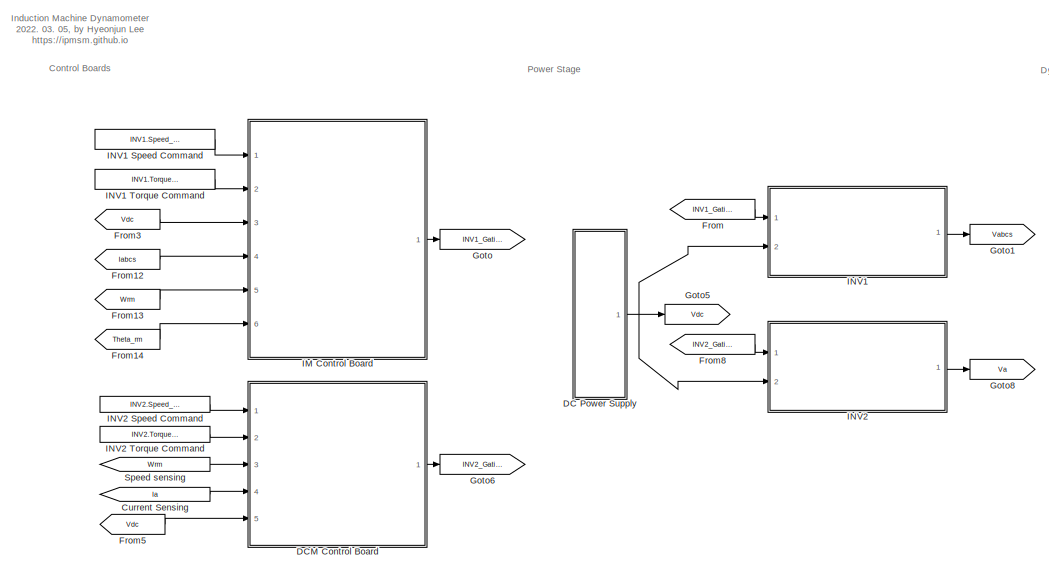
[diagram: root canvas - part 1/2, left side, full height]
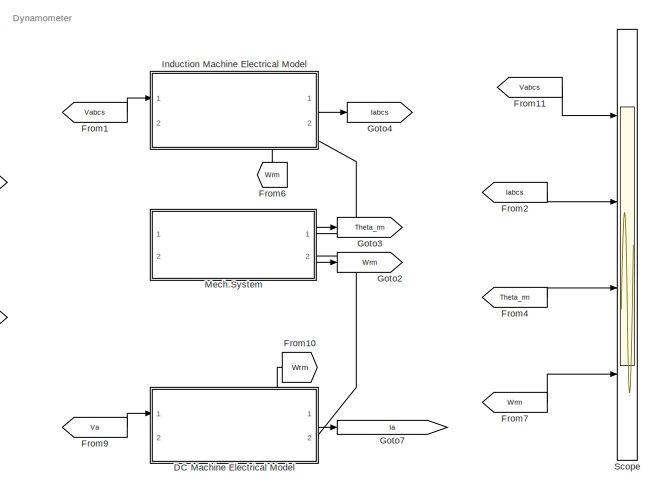
[diagram: root canvas - part 2/2, right side, full height]
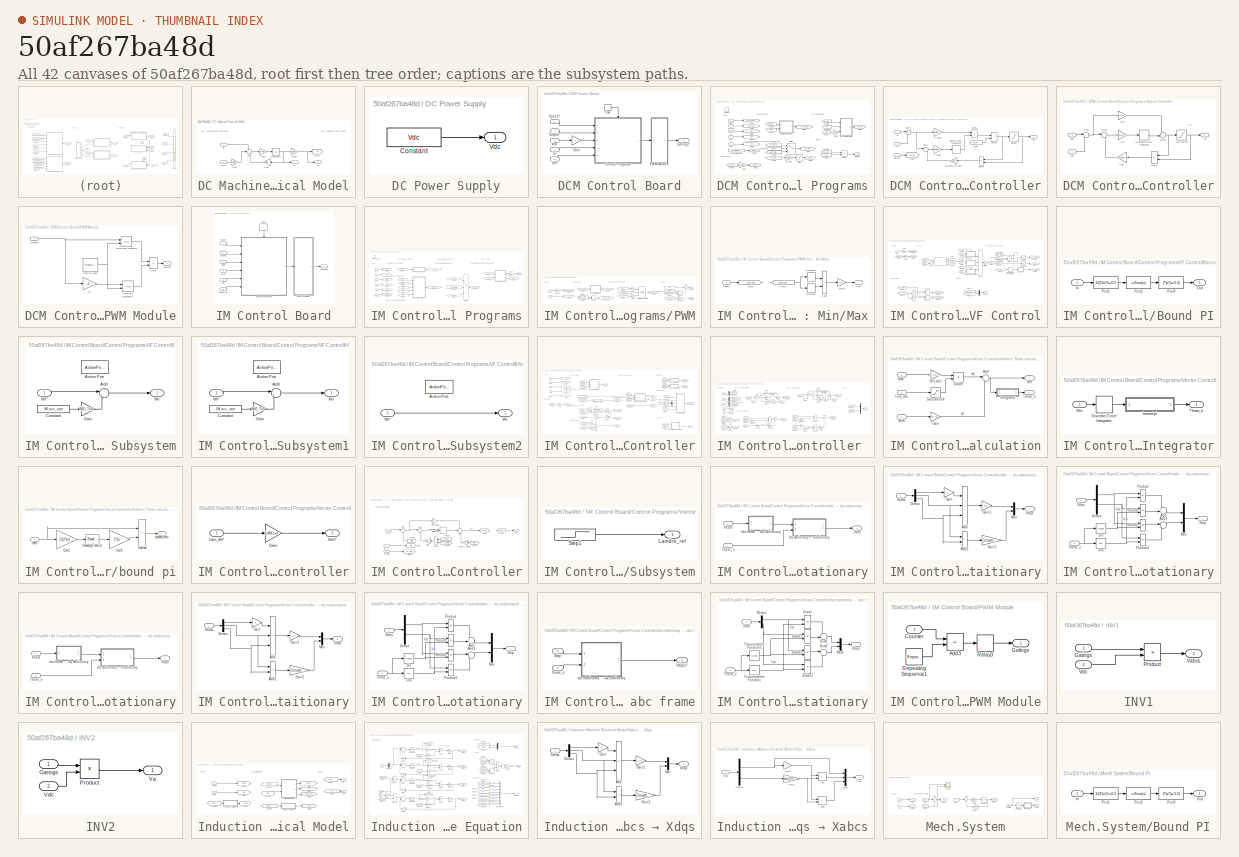
[diagram: thumbnail index - all 42 canvases of the model, root first then tree order]
MODEL slx_50af267ba48d
KIND model
CONFIG AbsTol = auto
CONFIG EnableMultiTasking = off
CONFIG FixedStep = auto
CONFIG MaxStep = 1e-5
CONFIG MinStep = auto
CONFIG RelTol = 1e-3
CONFIG SampleTimeConstraint = Unconstrained
CONFIG SolverName = ode45
CONFIG StartTime = 0.0
CONFIG StopTime = 2
BLOCK [From] Current Sensing
  GotoTag = Ia
BLOCK [SubSystem] DC Machine Electrical Model
  PortSchema = {"entries":[{"content":{"sides":[{"content":{"connectorIds":["In1"]},"type":"ConnectorPlacement.EquallySpacedRectSide","uuid":"4074897e-6920-4f33-b302-64d86120b7df"},{"content":{"connectorIds":["Out1"],"side":"RIGHT"},"type":"ConnectorPlacement.EquallySpacedRectSide","uuid":"671615ca-e362-48c9-a030-03d33faae874"},{"content":{"connectorIds":["Out2","In2"],"side":"TOP"},"type":"ConnectorPlacement.Eq...<+396ch>
  Ports = [2, 2]
  RequestExecContextInheritance = off
BLOCK [Gain] DC Machine Electrical Model/1//La2
  Gain = DCMotor.K
  OutDataTypeStr = Inherit: Same as input
  ParamDataTypeStr = Inherit: Same as input
  SaturateOnIntegerOverflow = on
BLOCK [Gain] DC Machine Electrical Model/Gain2
  Gain = 1/DCMotor.La
BLOCK [Gain] DC Machine Electrical Model/Gain3
  Gain = DCMotor.Ra
  NameLocation = top
BLOCK [Gain] DC Machine Electrical Model/Gain4
  Gain = DCMotor.K
BLOCK [Goto] DC Machine Electrical Model/Goto
  GotoTag = Te
BLOCK [Outport] DC Machine Electrical Model/Ia
BLOCK [Integrator] DC Machine Electrical Model/Integrator1
  Ports = [1, 1]
BLOCK [Sum] DC Machine Electrical Model/Sum
  Inputs = +--
  Ports = [3, 1]
  SaturateOnIntegerOverflow = on
BLOCK [Outport] DC Machine Electrical Model/Te
  Port = 2
  VectorParamsAs1DForOutWhenUnconnected = off
BLOCK [Inport] DC Machine Electrical Model/Va
BLOCK [Inport] DC Machine Electrical Model/Wrm
  Port = 2
BLOCK [SubSystem] DC Power Supply
  NameLocation = top
  Ports = [0, 1]
  RequestExecContextInheritance = off
BLOCK [Constant] DC Power Supply/Constant
  Value = Vdc
BLOCK [Outport] DC Power Supply/Vdc
BLOCK [SubSystem] DCM Control Board
  Ports = [5, 1]
  RequestExecContextInheritance = off
BLOCK [SubSystem] DCM Control Board/Control Programs
  Ports = [5, 1, 0, 1]
  RequestExecContextInheritance = off
BLOCK [Gain] DCM Control Board/Control Programs/1//LAMpm
  Gain = 1/DCMotor.Kt
  OutDataTypeStr = Inherit: Same as input
  ParamDataTypeStr = Inherit: Same as input
  SaturateOnIntegerOverflow = on
BLOCK [Outport] DCM Control Board/Control Programs/Counter
BLOCK [SubSystem] DCM Control Board/Control Programs/Current Controller
  Ports = [3, 1]
  RequestExecContextInheritance = off
BLOCK [Gain] DCM Control Board/Control Programs/Current Controller/Anti-Wind up Gain1
  Gain = DCMotor.Kac
  OutDataTypeStr = Inherit: Same as input
  ParamDataTypeStr = Inherit: Same as input
  SaturateOnIntegerOverflow = on
BLOCK [DiscreteIntegrator] DCM Control Board/Control Programs/Current Controller/Discrete-Time Integrator
  ICPrevOutput = DiscIntNeverNeededParam
  ICPrevScaledInput = DiscIntNeverNeededParam
  InitialConditionSetting = Auto
  Ports = [1, 1]
  SampleTime = -1
BLOCK [Inport] DCM Control Board/Control Programs/Current Controller/Ea_est
  Port = 3
BLOCK [From] DCM Control Board/Control Programs/Current Controller/From
  GotoTag = Ea_hat
BLOCK [Goto] DCM Control Board/Control Programs/Current Controller/Goto
  GotoTag = Ea_hat
BLOCK [Gain] DCM Control Board/Control Programs/Current Controller/I Gain1
  Gain = DCMotor.Kic
  OutDataTypeStr = Inherit: Same as input
  ParamDataTypeStr = Inherit: Same as input
  SaturateOnIntegerOverflow = on
BLOCK [Inport] DCM Control Board/Control Programs/Current Controller/Ia
  Port = 2
BLOCK [Inport] DCM Control Board/Control Programs/Current Controller/Ia*
BLOCK [Gain] DCM Control Board/Control Programs/Current Controller/P Gain1
  Gain = DCMotor.Kpc
  OutDataTypeStr = Inherit: Same as input
  ParamDataTypeStr = Inherit: Same as input
  SaturateOnIntegerOverflow = on
BLOCK [Sum] DCM Control Board/Control Programs/Current Controller/Sum1
  Inputs = |+-
  Ports = [2, 1]
  SaturateOnIntegerOverflow = on
BLOCK [Sum] DCM Control Board/Control Programs/Current Controller/Sum5
  IconShape = rectangular
  Ports = [2, 1]
  SaturateOnIntegerOverflow = on
BLOCK [Sum] DCM Control Board/Control Programs/Current Controller/Sum6
  IconShape = rectangular
  Ports = [2, 1]
  SaturateOnIntegerOverflow = on
BLOCK [Sum] DCM Control Board/Control Programs/Current Controller/Sum7
  Inputs = |+-
  Ports = [2, 1]
  SaturateOnIntegerOverflow = on
BLOCK [Sum] DCM Control Board/Control Programs/Current Controller/Sum8
  IconShape = rectangular
  Inputs = +-
  NameLocation = top
  Ports = [2, 1]
  SaturateOnIntegerOverflow = on
BLOCK [Outport] DCM Control Board/Control Programs/Current Controller/Va*
  VectorParamsAs1DForOutWhenUnconnected = off
BLOCK [Saturate] DCM Control Board/Control Programs/Current Controller/limiter
  LowerLimit = -DCMotor.Va_rated
  UpperLimit = DCMotor.Va_rated
BLOCK [Product] DCM Control Board/Control Programs/Divide
  Inputs = */
  Ports = [2, 1]
BLOCK [From] DCM Control Board/Control Programs/From
  GotoTag = Wm
BLOCK [From] DCM Control Board/Control Programs/From1
  GotoTag = User_Speed_Ref
BLOCK [From] DCM Control Board/Control Programs/From10
  GotoTag = Va_Ref
BLOCK [From] DCM Control Board/Control Programs/From11
  GotoTag = Vdc
BLOCK [From] DCM Control Board/Control Programs/From2
  GotoTag = Wm_ref
BLOCK [From] DCM Control Board/Control Programs/From3
  GotoTag = Wm
BLOCK [From] DCM Control Board/Control Programs/From4
  GotoTag = User_Torque_Ref
BLOCK [From] DCM Control Board/Control Programs/From5
  GotoTag = Te_Ref_SC
BLOCK [From] DCM Control Board/Control Programs/From6
  GotoTag = Mode
BLOCK [From] DCM Control Board/Control Programs/From7
  GotoTag = Te_Ref
BLOCK [From] DCM Control Board/Control Programs/From8
  GotoTag = Ia_Ref
BLOCK [From] DCM Control Board/Control Programs/From9
  GotoTag = Ia
BLOCK [Gain] DCM Control Board/Control Programs/Gain
  Gain = (2*pi)/60
BLOCK [Gain] DCM Control Board/Control Programs/Gain2
  Gain = DCMotor.K
BLOCK [Goto] DCM Control Board/Control Programs/Goto
  GotoTag = User_Torque_Ref
BLOCK [Goto] DCM Control Board/Control Programs/Goto1
  GotoTag = Wm_ref
BLOCK [Goto] DCM Control Board/Control Programs/Goto2
  GotoTag = Ia
BLOCK [Goto] DCM Control Board/Control Programs/Goto3
  GotoTag = Wm
BLOCK [Goto] DCM Control Board/Control Programs/Goto4
  GotoTag = Mode
BLOCK [Goto] DCM Control Board/Control Programs/Goto5
  GotoTag = Te_Ref_SC
BLOCK [Goto] DCM Control Board/Control Programs/Goto6
  GotoTag = Te_Ref
BLOCK [Goto] DCM Control Board/Control Programs/Goto7
  GotoTag = Ia_Ref
BLOCK [Goto] DCM Control Board/Control Programs/Goto8
  GotoTag = Va_Ref
BLOCK [Goto] DCM Control Board/Control Programs/Goto9
  GotoTag = Vdc
BLOCK [Inport] DCM Control Board/Control Programs/Ia
  Port = 4
BLOCK [Saturate] DCM Control Board/Control Programs/Ia limit
  LowerLimit = -DCMotor.Ia_limit
  UpperLimit = DCMotor.Ia_limit
BLOCK [Constant] DCM Control Board/Control Programs/Operation Mode
  Value = INV2.DriveMode
BLOCK [Goto] DCM Control Board/Control Programs/RPM
  GotoTag = User_Speed_Ref
BLOCK [SubSystem] DCM Control Board/Control Programs/Speed Controller
  Ports = [2, 1]
  RequestExecContextInheritance = off
BLOCK [DiscreteIntegrator] DCM Control Board/Control Programs/Speed Controller/Discrete-Time Integrator
  ICPrevOutput = DiscIntNeverNeededParam
  ICPrevScaledInput = DiscIntNeverNeededParam
  InitialConditionSetting = Auto
  Ports = [1, 1]
  SampleTime = -1
BLOCK [Gain] DCM Control Board/Control Programs/Speed Controller/Ksa
  Gain = DCMotor.Ksa
  OutDataTypeStr = Inherit: Same as input
  ParamDataTypeStr = Inherit: Same as input
  SaturateOnIntegerOverflow = on
BLOCK [Gain] DCM Control Board/Control Programs/Speed Controller/Ksi
  Gain = DCMotor.Ksi
  OutDataTypeStr = Inherit: Same as input
  ParamDataTypeStr = Inherit: Same as input
  SaturateOnIntegerOverflow = on
BLOCK [Gain] DCM Control Board/Control Programs/Speed Controller/Ksp
  Gain = DCMotor.Ksp
  OutDataTypeStr = Inherit: Same as input
  ParamDataTypeStr = Inherit: Same as input
  SaturateOnIntegerOverflow = on
BLOCK [Sum] DCM Control Board/Control Programs/Speed Controller/Sum
  Inputs = |+-
  Ports = [2, 1]
  SaturateOnIntegerOverflow = on
BLOCK [Sum] DCM Control Board/Control Programs/Speed Controller/Sum2
  Inputs = |+-
  Ports = [2, 1]
  SaturateOnIntegerOverflow = on
BLOCK [Sum] DCM Control Board/Control Programs/Speed Controller/Sum3
  Inputs = ++|
  Ports = [2, 1]
  SaturateOnIntegerOverflow = on
BLOCK [Sum] DCM Control Board/Control Programs/Speed Controller/Sum4
  IconShape = rectangular
  Inputs = +-
  NameLocation = top
  Ports = [2, 1]
  SaturateOnIntegerOverflow = on
BLOCK [Outport] DCM Control Board/Control Programs/Speed Controller/Te*
  VectorParamsAs1DForOutWhenUnconnected = off
BLOCK [Saturate] DCM Control Board/Control Programs/Speed Controller/Te-limiter
  LowerLimit = -DCMotor.Te_limit
  UpperLimit = DCMotor.Te_limit
BLOCK [Inport] DCM Control Board/Control Programs/Speed Controller/Wm
  Port = 2
BLOCK [Inport] DCM Control Board/Control Programs/Speed Controller/Wm*
BLOCK [Inport] DCM Control Board/Control Programs/Speed*
BLOCK [Switch] DCM Control Board/Control Programs/Switch
  Criteria = u2 > Threshold
  InputSameDT = off
  SaturateOnIntegerOverflow = off
BLOCK [Inport] DCM Control Board/Control Programs/Torque*
  Port = 2
BLOCK [TriggerPort] DCM Control Board/Control Programs/Trigger
  PortDimensions = 1
  Ports = []
  StatesWhenEnabling = held
  VariantControl = (inherit)
BLOCK [Inport] DCM Control Board/Control Programs/Vdc
  Port = 5
BLOCK [Inport] DCM Control Board/Control Programs/Wm
  Port = 3
BLOCK [DiscretePulseGenerator] DCM Control Board/Fsw
  Period = 1/INV2.SwitchingFrequency
  Ports = [0, 1]
  PulseType = Time based
  PulseWidth = 50
BLOCK [Gain] DCM Control Board/Gain
  Gain = -1
BLOCK [Outport] DCM Control Board/Gatings*
BLOCK [Inport] DCM Control Board/Ia
  Port = 4
BLOCK [SubSystem] DCM Control Board/PWM Module
  Ports = [1, 1]
  RequestExecContextInheritance = off
BLOCK [Gain] DCM Control Board/PWM Module/1//3
  Gain = -1
  OutDataTypeStr = Inherit: Same as input
  ParamDataTypeStr = Inherit: Same as input
  SaturateOnIntegerOverflow = on
BLOCK [Reference] DCM Control Board/PWM Module/Carrier wave  REF=simulink/Sources/Repeating
Sequence
  Ports = [0, 1]
  SourceBlock = simulink/Sources/Repeating\nSequence
  SourceProductBaseCode = SL
  SourceType = Repeating table
BLOCK [Inport] DCM Control Board/PWM Module/Counter
BLOCK [Outport] DCM Control Board/PWM Module/Gating
BLOCK [RelationalOperator] DCM Control Board/PWM Module/Relational Operator
  Ports = [2, 1]
BLOCK [RelationalOperator] DCM Control Board/PWM Module/Relational Operator1
  Ports = [2, 1]
BLOCK [Sum] DCM Control Board/PWM Module/Sum2
  IconShape = rectangular
  Inputs = +-
  Ports = [2, 1]
  SaturateOnIntegerOverflow = on
BLOCK [Inport] DCM Control Board/Speed*
BLOCK [Inport] DCM Control Board/Torque*
  Port = 2
BLOCK [Inport] DCM Control Board/Vdc
  Port = 5
BLOCK [Inport] DCM Control Board/Wm
  Port = 3
BLOCK [From] From
  GotoTag = INV1_Gating
BLOCK [From] From1
  GotoTag = Vabcs
BLOCK [From] From10
  GotoTag = Wrm
  NameLocation = top
BLOCK [From] From11
  GotoTag = Vabcs
BLOCK [From] From12
  GotoTag = Iabcs
BLOCK [From] From13
  GotoTag = Wrm
BLOCK [From] From14
  GotoTag = Theta_rm
BLOCK [From] From2
  GotoTag = Iabcs
BLOCK [From] From3
  GotoTag = Vdc
BLOCK [From] From4
  GotoTag = Theta_rm
BLOCK [From] From5
  GotoTag = Vdc
BLOCK [From] From6
  GotoTag = Wrm
  NameLocation = right
BLOCK [From] From7
  GotoTag = Wrm
BLOCK [From] From8
  GotoTag = INV2_Gating
BLOCK [From] From9
  GotoTag = Va
BLOCK [Goto] Goto
  GotoTag = INV1_Gating
BLOCK [Goto] Goto1
  GotoTag = Vabcs
BLOCK [Goto] Goto2
  GotoTag = Wrm
BLOCK [Goto] Goto3
  GotoTag = Theta_rm
BLOCK [Goto] Goto4
  GotoTag = Iabcs
BLOCK [Goto] Goto5
  GotoTag = Vdc
BLOCK [Goto] Goto6
  GotoTag = INV2_Gating
BLOCK [Goto] Goto7
  GotoTag = Ia
BLOCK [Goto] Goto8
  GotoTag = Va
BLOCK [SubSystem] IM Control Board
  NameLocation = top
  Ports = [6, 1]
  RequestExecContextInheritance = off
BLOCK [SubSystem] IM Control Board/Control Programs
  Ports = [6, 1, 0, 1]
  RequestExecContextInheritance = off
BLOCK [Constant] IM Control Board/Control Programs/Constant
  Value = INV1.DriveMode
BLOCK [Outport] IM Control Board/Control Programs/Counter
BLOCK [From] IM Control Board/Control Programs/From
  GotoTag = Iabcs
BLOCK [From] IM Control Board/Control Programs/From1
  CloseFcn = tagdialog Close
  GotoTag = Vdqss_Ref
  NameLocation = top
BLOCK [From] IM Control Board/Control Programs/From2
  GotoTag = Wrpm_ref
BLOCK [From] IM Control Board/Control Programs/From4
  GotoTag = Wrpm_ref
BLOCK [From] IM Control Board/Control Programs/From47
  CloseFcn = tagdialog Close
  GotoTag = Vdc
  NameLocation = top
BLOCK [From] IM Control Board/Control Programs/From5
  GotoTag = Te_ref
BLOCK [From] IM Control Board/Control Programs/From6
  GotoTag = Wrm
BLOCK [From] IM Control Board/Control Programs/From7
  GotoTag = VdqssRef_Mode_VF
BLOCK [From] IM Control Board/Control Programs/From8
  GotoTag = VdqssRef_Mode_Vector
BLOCK [From] IM Control Board/Control Programs/From9
  GotoTag = Vdc
BLOCK [Goto] IM Control Board/Control Programs/Goto
  GotoTag = Vdqss_Ref
BLOCK [Goto] IM Control Board/Control Programs/Goto1
  GotoTag = Wrpm_ref
BLOCK [Goto] IM Control Board/Control Programs/Goto13
  GotoTag = Vdqss
BLOCK [Goto] IM Control Board/Control Programs/Goto2
  GotoTag = Theta_rm
BLOCK [Goto] IM Control Board/Control Programs/Goto3
  GotoTag = Vdc
BLOCK [Goto] IM Control Board/Control Programs/Goto4
  GotoTag = Te_ref
BLOCK [Goto] IM Control Board/Control Programs/Goto5
  GotoTag = VdqssRef_Mode_Vector
BLOCK [Goto] IM Control Board/Control Programs/Goto6
  GotoTag = VdqssRef_Mode1_VF
BLOCK [Goto] IM Control Board/Control Programs/Goto7
  GotoTag = Iabcs
BLOCK [Goto] IM Control Board/Control Programs/Goto8
  GotoTag = Wrm
BLOCK [Inport] IM Control Board/Control Programs/Iabcs
  Port = 3
BLOCK [SubSystem] IM Control Board/Control Programs/PWM
  Ports = [2, 2]
  RequestExecContextInheritance = off
BLOCK [Sum] IM Control Board/Control Programs/PWM/Add1
  IconShape = rectangular
  Ports = [2, 1]
BLOCK [Sum] IM Control Board/Control Programs/PWM/Add3
  Inputs = |++
  Ports = [2, 1]
BLOCK [Constant] IM Control Board/Control Programs/PWM/Constant
  Value = 0.5
BLOCK [Outport] IM Control Board/Control Programs/PWM/Counter
BLOCK [Product] IM Control Board/Control Programs/PWM/Divide3
  Inputs = /*
  Ports = [2, 1]
BLOCK [From] IM Control Board/Control Programs/PWM/From
  GotoTag = Vdc
BLOCK [From] IM Control Board/Control Programs/PWM/From1
  GotoTag = Vdc
BLOCK [From] IM Control Board/Control Programs/PWM/From10
  CloseFcn = tagdialog Close
  GotoTag = Vabcs_Ref
  NameLocation = top
BLOCK [From] IM Control Board/Control Programs/PWM/From2
  CloseFcn = tagdialog Close
  GotoTag = Vdc
  NameLocation = top
BLOCK [From] IM Control Board/Control Programs/PWM/From3
  CloseFcn = tagdialog Close
  GotoTag = Vabcs_Ref
  NameLocation = top
BLOCK [From] IM Control Board/Control Programs/PWM/From4
  GotoTag = Vabcn_Ref
BLOCK [From] IM Control Board/Control Programs/PWM/From5
  CloseFcn = tagdialog Close
  GotoTag = Vsn_Ref
  NameLocation = top
BLOCK [From] IM Control Board/Control Programs/PWM/From6
  GotoTag = Vabcn_Ref_unbound
BLOCK [From] IM Control Board/Control Programs/PWM/From9
  GotoTag = Vabcn_Ref
BLOCK [Gain] IM Control Board/Control Programs/PWM/Gain2
  Gain = -0.5
BLOCK [Gain] IM Control Board/Control Programs/PWM/Gain3
  Gain = 0.5
BLOCK [Goto] IM Control Board/Control Programs/PWM/Goto1
  GotoTag = Vdc
BLOCK [Goto] IM Control Board/Control Programs/PWM/Goto2
  GotoTag = Vabcn_Ref
BLOCK [Goto] IM Control Board/Control Programs/PWM/Goto3
  GotoTag = Vabcn_Ref_unbound
BLOCK [Goto] IM Control Board/Control Programs/PWM/Goto4
  GotoTag = Vsn_Ref
BLOCK [Goto] IM Control Board/Control Programs/PWM/Goto5
  GotoTag = Vabcs_Ref
BLOCK [Reference] IM Control Board/Control Programs/PWM/Saturation Dynamic  REF=simulink/Discontinuities/Saturation
Dynamic
  Ports = [3, 1]
  SourceBlock = simulink/Discontinuities/Saturation\nDynamic
  SourceProductBaseCode = SL
  SourceType = Saturation Dynamic
BLOCK [Inport] IM Control Board/Control Programs/PWM/Vdc
  Port = 2
BLOCK [Outport] IM Control Board/Control Programs/PWM/Vdqss
  NameLocation = top
  Port = 2
BLOCK [Inport] IM Control Board/Control Programs/PWM/Vdqss*
BLOCK [SubSystem] IM Control Board/Control Programs/PWM/Vsn : Min//Max
  Ports = [1, 1]
  RequestExecContextInheritance = off
BLOCK [Sum] IM Control Board/Control Programs/PWM/Vsn : Min//Max/Add3
  IconShape = rectangular
  Ports = [2, 1]
BLOCK [From] IM Control Board/Control Programs/PWM/Vsn : Min//Max/From1
  CloseFcn = tagdialog Close
  GotoTag = Vabcs_Ref
  NameLocation = top
BLOCK [Gain] IM Control Board/Control Programs/PWM/Vsn : Min//Max/Gain1
  Gain = -0.5
BLOCK [Goto] IM Control Board/Control Programs/PWM/Vsn : Min//Max/Goto
  GotoTag = Vabcs_Ref
BLOCK [MinMax] IM Control Board/Control Programs/PWM/Vsn : Min//Max/MinMax1
  Function = max
  NameLocation = top
  Ports = [1, 1]
BLOCK [MinMax] IM Control Board/Control Programs/PWM/Vsn : Min//Max/MinMax2
  NameLocation = top
  Ports = [1, 1]
BLOCK [Inport] IM Control Board/Control Programs/PWM/Vsn : Min//Max/Vabcs*
BLOCK [Outport] IM Control Board/Control Programs/PWM/Vsn : Min//Max/Vsn*
BLOCK [Gain] IM Control Board/Control Programs/PWM/abc2dq
  Gain = [2/3 -1/3 -1/3 ; 0 1/sqrt(3) -1/sqrt(3)]
  Multiplication = Matrix(K*u)
  NameLocation = top
  OutDataTypeStr = Inherit: Same as input
  ParamDataTypeStr = Inherit: Same as input
  SaturateOnIntegerOverflow = on
BLOCK [Gain] IM Control Board/Control Programs/PWM/dq2abc
  Gain = [1 0 ; -0.5 sqrt(3)/2 ; -0.5 -sqrt(3)/2]
  Multiplication = Matrix(K*u)
  NameLocation = top
BLOCK [Switch] IM Control Board/Control Programs/Switch
  Criteria = u2 > Threshold
  InputSameDT = off
  SaturateOnIntegerOverflow = off
BLOCK [Inport] IM Control Board/Control Programs/Te*
  Port = 2
BLOCK [Inport] IM Control Board/Control Programs/Theta_rm
  Port = 6
BLOCK [TriggerPort] IM Control Board/Control Programs/Trigger
  PortDimensions = 1
  Ports = []
  StatesWhenEnabling = held
  VariantControl = (inherit)
BLOCK [UnitDelay] IM Control Board/Control Programs/Unit Delay1
  HasFrameUpgradeWarning = on
  SampleTime = -1
BLOCK [SubSystem] IM Control Board/Control Programs/VF Control
  Ports = [1, 1]
  RequestExecContextInheritance = off
BLOCK [SubSystem] IM Control Board/Control Programs/VF Control/Bound PI
  Ports = [1, 1]
  RequestExecContextInheritance = off
BLOCK [Fcn] IM Control Board/Control Programs/VF Control/Bound PI/Fcn1
  Expr = 1/(2*pi)*u+0.5
BLOCK [Fcn] IM Control Board/Control Programs/VF Control/Bound PI/Fcn2
  Expr = u-floor(u)
BLOCK [Fcn] IM Control Board/Control Programs/VF Control/Bound PI/Fcn3
  Expr = 2*pi*(u-0.5)
BLOCK [Inport] IM Control Board/Control Programs/VF Control/Bound PI/In
BLOCK [Outport] IM Control Board/Control Programs/VF Control/Bound PI/Out
BLOCK [Constant] IM Control Board/Control Programs/VF Control/Constant
  Value = IM.Wr_rated
BLOCK [Constant] IM Control Board/Control Programs/VF Control/Constant1
  Value = IM.Vs_rated
BLOCK [Trigonometry] IM Control Board/Control Programs/VF Control/Cos
  Operator = cos
  Ports = [1, 1]
BLOCK [DiscreteIntegrator] IM Control Board/Control Programs/VF Control/Discrete-Time Integrator1
  ICPrevOutput = DiscIntNeverNeededParam
  ICPrevScaledInput = DiscIntNeverNeededParam
  InitialConditionSetting = Auto
  Ports = [1, 1]
  SampleTime = -1
BLOCK [Product] IM Control Board/Control Programs/VF Control/Divide
  Inputs = */
  Ports = [2, 1]
BLOCK [From] IM Control Board/Control Programs/VF Control/From
  GotoTag = Wrm_cmd
BLOCK [From] IM Control Board/Control Programs/VF Control/From1
  GotoTag = Wr_cmd
BLOCK [From] IM Control Board/Control Programs/VF Control/From10
  GotoTag = Wr_ref
BLOCK [From] IM Control Board/Control Programs/VF Control/From11
  GotoTag = VF_Wr
BLOCK [From] IM Control Board/Control Programs/VF Control/From12
  GotoTag = VF_voltage
BLOCK [From] IM Control Board/Control Programs/VF Control/From13
  GotoTag = VF_Thetar
BLOCK [From] IM Control Board/Control Programs/VF Control/From14
  GotoTag = Vdss_Ref
BLOCK [From] IM Control Board/Control Programs/VF Control/From15
  GotoTag = Vqss_Ref
BLOCK [From] IM Control Board/Control Programs/VF Control/From2
  GotoTag = Wr_ref
BLOCK [From] IM Control Board/Control Programs/VF Control/From3
  GotoTag = acc
BLOCK [From] IM Control Board/Control Programs/VF Control/From4
  GotoTag = dcc
BLOCK [From] IM Control Board/Control Programs/VF Control/From5
  GotoTag = coast
BLOCK [From] IM Control Board/Control Programs/VF Control/From6
  GotoTag = Wr_ref
BLOCK [From] IM Control Board/Control Programs/VF Control/From7
  GotoTag = Wr_ref
BLOCK [From] IM Control Board/Control Programs/VF Control/From8
  GotoTag = Wr_ref
BLOCK [From] IM Control Board/Control Programs/VF Control/From9
  GotoTag = Wr_ref
BLOCK [Gain] IM Control Board/Control Programs/VF Control/Gain
  Gain = (2*pi)/60
BLOCK [Gain] IM Control Board/Control Programs/VF Control/Gain1
  Gain = IM.pp
BLOCK [Goto] IM Control Board/Control Programs/VF Control/Goto
  GotoTag = Wrm_cmd
BLOCK [Goto] IM Control Board/Control Programs/VF Control/Goto1
  GotoTag = Wr_cmd
BLOCK [Goto] IM Control Board/Control Programs/VF Control/Goto10
  GotoTag = Vqss_Ref
BLOCK [Goto] IM Control Board/Control Programs/VF Control/Goto11
  GotoTag = Wr_ref
BLOCK [Goto] IM Control Board/Control Programs/VF Control/Goto2
  GotoTag = acc
BLOCK [Goto] IM Control Board/Control Programs/VF Control/Goto3
  GotoTag = dcc
BLOCK [Goto] IM Control Board/Control Programs/VF Control/Goto4
  GotoTag = coast
BLOCK [Goto] IM Control Board/Control Programs/VF Control/Goto6
  GotoTag = VF_voltage
BLOCK [Goto] IM Control Board/Control Programs/VF Control/Goto7
  GotoTag = VF_Wr
BLOCK [Goto] IM Control Board/Control Programs/VF Control/Goto8
  GotoTag = VF_Thetar
BLOCK [Goto] IM Control Board/Control Programs/VF Control/Goto9
  GotoTag = Vdss_Ref
BLOCK [InitialCondition] IM Control Board/Control Programs/VF Control/IC
  Value = 0
BLOCK [If] IM Control Board/Control Programs/VF Control/If
  ElseIfExpressions = u1 < u2
  IfExpression = u1 > u2
  NumInputs = 2
  Ports = [2, 3]
BLOCK [SubSystem] IM Control Board/Control Programs/VF Control/If Action Subsystem
  Ports = [1, 1, 0, 0, 0, 0, 0, 1]
  RequestExecContextInheritance = off
  TreatAsAtomicUnit = on
BLOCK [ActionPort] IM Control Board/Control Programs/VF Control/If Action Subsystem/Action Port
  ActionPortLabel = if(u1 > u2)
BLOCK [Sum] IM Control Board/Control Programs/VF Control/If Action Subsystem/Add
  Inputs = |++
  Ports = [2, 1]
BLOCK [Constant] IM Control Board/Control Programs/VF Control/If Action Subsystem/Constant
  Value = IM.acc_rate
BLOCK [Gain] IM Control Board/Control Programs/VF Control/If Action Subsystem/Gain
  Gain = INV1.Tsw
BLOCK [Outport] IM Control Board/Control Programs/VF Control/If Action Subsystem/Wr
BLOCK [Inport] IM Control Board/Control Programs/VF Control/If Action Subsystem/Wr*
BLOCK [SubSystem] IM Control Board/Control Programs/VF Control/If Action Subsystem1
  Ports = [1, 1, 0, 0, 0, 0, 0, 1]
  RequestExecContextInheritance = off
  TreatAsAtomicUnit = on
BLOCK [ActionPort] IM Control Board/Control Programs/VF Control/If Action Subsystem1/Action Port
  ActionPortLabel = elseif(u1 < u2)
BLOCK [Sum] IM Control Board/Control Programs/VF Control/If Action Subsystem1/Add
  Inputs = |+-
  Ports = [2, 1]
BLOCK [Constant] IM Control Board/Control Programs/VF Control/If Action Subsystem1/Constant
  Value = IM.acc_rate
BLOCK [Gain] IM Control Board/Control Programs/VF Control/If Action Subsystem1/Gain
  Gain = INV1.Tsw
BLOCK [Outport] IM Control Board/Control Programs/VF Control/If Action Subsystem1/Wr
BLOCK [Inport] IM Control Board/Control Programs/VF Control/If Action Subsystem1/Wr*
BLOCK [SubSystem] IM Control Board/Control Programs/VF Control/If Action Subsystem2
  Ports = [1, 1, 0, 0, 0, 0, 0, 1]
  RequestExecContextInheritance = off
  TreatAsAtomicUnit = on
BLOCK [ActionPort] IM Control Board/Control Programs/VF Control/If Action Subsystem2/Action Port
  ActionPortLabel = else
BLOCK [Outport] IM Control Board/Control Programs/VF Control/If Action Subsystem2/Wr
BLOCK [Inport] IM Control Board/Control Programs/VF Control/If Action Subsystem2/Wr*
BLOCK [Merge] IM Control Board/Control Programs/VF Control/Merge
  InitialOutput = [1]
  Inputs = 3
  Ports = [3, 1]
BLOCK [Mux] IM Control Board/Control Programs/VF Control/Mux
  DisplayOption = bar
  Inputs = 2
  Ports = [2, 1]
BLOCK [Product] IM Control Board/Control Programs/VF Control/Product
  Ports = [2, 1]
BLOCK [Product] IM Control Board/Control Programs/VF Control/Product1
  Ports = [2, 1]
BLOCK [Product] IM Control Board/Control Programs/VF Control/Product2
  Ports = [2, 1]
BLOCK [Saturate] IM Control Board/Control Programs/VF Control/Saturation1
  LowerLimit = -IM.Wr_rated*1.5
  UpperLimit = IM.Wr_rated*1.5
BLOCK [Saturate] IM Control Board/Control Programs/VF Control/Saturation2
  LowerLimit = -IM.Vs_rated
  UpperLimit = IM.Vs_rated
BLOCK [Trigonometry] IM Control Board/Control Programs/VF Control/Sin
  Ports = [1, 1]
BLOCK [UnitDelay] IM Control Board/Control Programs/VF Control/Unit Delay
  HasFrameUpgradeWarning = on
  SampleTime = -1
BLOCK [Outport] IM Control Board/Control Programs/VF Control/Vdqss*
BLOCK [Inport] IM Control Board/Control Programs/VF Control/Wrpm*
BLOCK [Inport] IM Control Board/Control Programs/Vdc
  Port = 5
BLOCK [SubSystem] IM Control Board/Control Programs/Vector Controller
  Ports = [5, 1]
  RequestExecContextInheritance = off
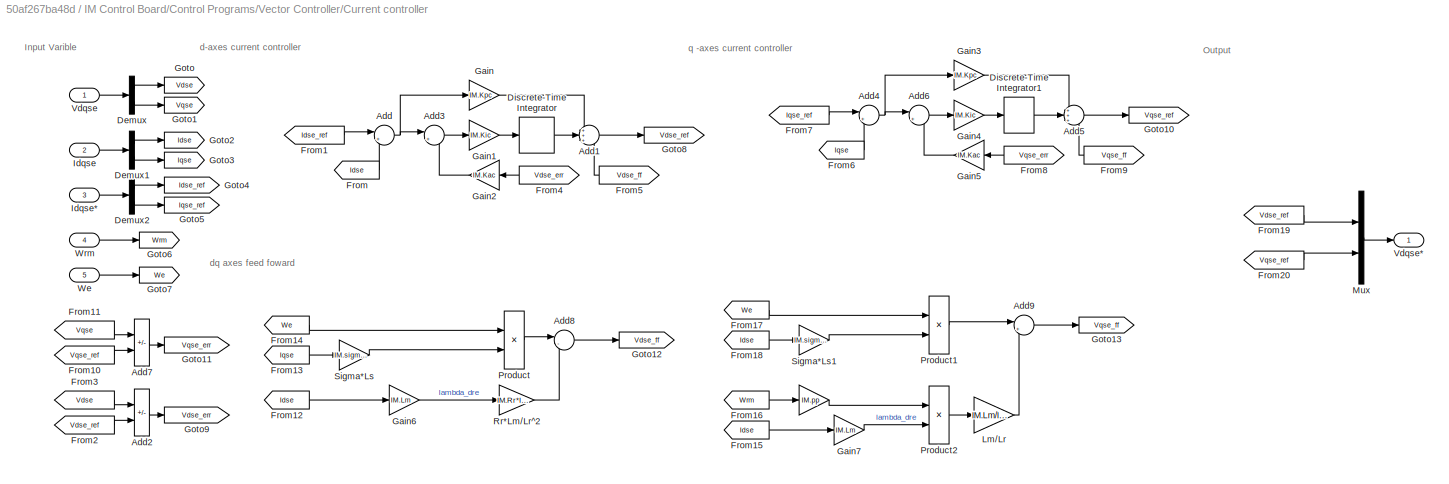
BLOCK [SubSystem] IM Control Board/Control Programs/Vector Controller/Current controller 
  Ports = [5, 1]
  RequestExecContextInheritance = off
BLOCK [Gain] IM Control Board/Control Programs/Vector Controller/Current controller / 
  Gain = IM.pp
BLOCK [Sum] IM Control Board/Control Programs/Vector Controller/Current controller /Add
  Inputs = |+-
  Ports = [2, 1]
BLOCK [Sum] IM Control Board/Control Programs/Vector Controller/Current controller /Add1
  Inputs = +++
  Ports = [3, 1]
BLOCK [Sum] IM Control Board/Control Programs/Vector Controller/Current controller /Add2
  IconShape = rectangular
  Inputs = +-
  Ports = [2, 1]
BLOCK [Sum] IM Control Board/Control Programs/Vector Controller/Current controller /Add3
  Inputs = |+-
  Ports = [2, 1]
BLOCK [Sum] IM Control Board/Control Programs/Vector Controller/Current controller /Add4
  Inputs = |+-
  Ports = [2, 1]
BLOCK [Sum] IM Control Board/Control Programs/Vector Controller/Current controller /Add5
  Inputs = +++
  Ports = [3, 1]
BLOCK [Sum] IM Control Board/Control Programs/Vector Controller/Current controller /Add6
  Inputs = |+-
  Ports = [2, 1]
BLOCK [Sum] IM Control Board/Control Programs/Vector Controller/Current controller /Add7
  IconShape = rectangular
  Inputs = +-
  Ports = [2, 1]
BLOCK [Sum] IM Control Board/Control Programs/Vector Controller/Current controller /Add8
  Inputs = |--
  Ports = [2, 1]
BLOCK [Sum] IM Control Board/Control Programs/Vector Controller/Current controller /Add9
  Inputs = |++
  Ports = [2, 1]
BLOCK [Demux] IM Control Board/Control Programs/Vector Controller/Current controller /Demux
  Outputs = 2
  Ports = [1, 2]
BLOCK [Demux] IM Control Board/Control Programs/Vector Controller/Current controller /Demux1
  Outputs = 2
  Ports = [1, 2]
BLOCK [Demux] IM Control Board/Control Programs/Vector Controller/Current controller /Demux2
  Outputs = 2
  Ports = [1, 2]
BLOCK [DiscreteIntegrator] IM Control Board/Control Programs/Vector Controller/Current controller /Discrete-Time Integrator
  ICPrevOutput = DiscIntNeverNeededParam
  ICPrevScaledInput = DiscIntNeverNeededParam
  InitialConditionSetting = Auto
  Ports = [1, 1]
  SampleTime = -1
BLOCK [DiscreteIntegrator] IM Control Board/Control Programs/Vector Controller/Current controller /Discrete-Time Integrator1
  ICPrevOutput = DiscIntNeverNeededParam
  ICPrevScaledInput = DiscIntNeverNeededParam
  InitialConditionSetting = Auto
  Ports = [1, 1]
  SampleTime = -1
BLOCK [From] IM Control Board/Control Programs/Vector Controller/Current controller /From
  GotoTag = Idse
BLOCK [From] IM Control Board/Control Programs/Vector Controller/Current controller /From1
  GotoTag = Idse_ref
BLOCK [From] IM Control Board/Control Programs/Vector Controller/Current controller /From10
  GotoTag = Vqse_ref
BLOCK [From] IM Control Board/Control Programs/Vector Controller/Current controller /From11
  GotoTag = Vqse
BLOCK [From] IM Control Board/Control Programs/Vector Controller/Current controller /From12
  GotoTag = Idse
BLOCK [From] IM Control Board/Control Programs/Vector Controller/Current controller /From13
  GotoTag = Iqse
BLOCK [From] IM Control Board/Control Programs/Vector Controller/Current controller /From14
  GotoTag = We
BLOCK [From] IM Control Board/Control Programs/Vector Controller/Current controller /From15
  GotoTag = Idse
BLOCK [From] IM Control Board/Control Programs/Vector Controller/Current controller /From16
  GotoTag = Wrm
BLOCK [From] IM Control Board/Control Programs/Vector Controller/Current controller /From17
  GotoTag = We
BLOCK [From] IM Control Board/Control Programs/Vector Controller/Current controller /From18
  GotoTag = Idse
BLOCK [From] IM Control Board/Control Programs/Vector Controller/Current controller /From19
  GotoTag = Vdse_ref
BLOCK [From] IM Control Board/Control Programs/Vector Controller/Current controller /From2
  GotoTag = Vdse_ref
BLOCK [From] IM Control Board/Control Programs/Vector Controller/Current controller /From20
  GotoTag = Vqse_ref
BLOCK [From] IM Control Board/Control Programs/Vector Controller/Current controller /From3
  GotoTag = Vdse
BLOCK [From] IM Control Board/Control Programs/Vector Controller/Current controller /From4
  GotoTag = Vdse_err
BLOCK [From] IM Control Board/Control Programs/Vector Controller/Current controller /From5
  GotoTag = Vdse_ff
BLOCK [From] IM Control Board/Control Programs/Vector Controller/Current controller /From6
  GotoTag = Iqse
BLOCK [From] IM Control Board/Control Programs/Vector Controller/Current controller /From7
  GotoTag = Iqse_ref
BLOCK [From] IM Control Board/Control Programs/Vector Controller/Current controller /From8
  GotoTag = Vqse_err
BLOCK [From] IM Control Board/Control Programs/Vector Controller/Current controller /From9
  GotoTag = Vqse_ff
BLOCK [Gain] IM Control Board/Control Programs/Vector Controller/Current controller /Gain
  Gain = IM.Kpc
BLOCK [Gain] IM Control Board/Control Programs/Vector Controller/Current controller /Gain1
  Gain = IM.Kic
BLOCK [Gain] IM Control Board/Control Programs/Vector Controller/Current controller /Gain2
  Gain = IM.Kac
BLOCK [Gain] IM Control Board/Control Programs/Vector Controller/Current controller /Gain3
  Gain = IM.Kpc
BLOCK [Gain] IM Control Board/Control Programs/Vector Controller/Current controller /Gain4
  Gain = IM.Kic
BLOCK [Gain] IM Control Board/Control Programs/Vector Controller/Current controller /Gain5
  Gain = IM.Kac
BLOCK [Gain] IM Control Board/Control Programs/Vector Controller/Current controller /Gain6
  Gain = IM.Lm
BLOCK [Gain] IM Control Board/Control Programs/Vector Controller/Current controller /Gain7
  Gain = IM.Lm
BLOCK [Goto] IM Control Board/Control Programs/Vector Controller/Current controller /Goto
  GotoTag = Vdse
BLOCK [Goto] IM Control Board/Control Programs/Vector Controller/Current controller /Goto1
  GotoTag = Vqse
BLOCK [Goto] IM Control Board/Control Programs/Vector Controller/Current controller /Goto10
  GotoTag = Vqse_ref
BLOCK [Goto] IM Control Board/Control Programs/Vector Controller/Current controller /Goto11
  GotoTag = Vqse_err
BLOCK [Goto] IM Control Board/Control Programs/Vector Controller/Current controller /Goto12
  GotoTag = Vdse_ff
BLOCK [Goto] IM Control Board/Control Programs/Vector Controller/Current controller /Goto13
  GotoTag = Vqse_ff
BLOCK [Goto] IM Control Board/Control Programs/Vector Controller/Current controller /Goto2
  GotoTag = Idse
BLOCK [Goto] IM Control Board/Control Programs/Vector Controller/Current controller /Goto3
  GotoTag = Iqse
BLOCK [Goto] IM Control Board/Control Programs/Vector Controller/Current controller /Goto4
  GotoTag = Idse_ref
BLOCK [Goto] IM Control Board/Control Programs/Vector Controller/Current controller /Goto5
  GotoTag = Iqse_ref
BLOCK [Goto] IM Control Board/Control Programs/Vector Controller/Current controller /Goto6
  GotoTag = Wrm
BLOCK [Goto] IM Control Board/Control Programs/Vector Controller/Current controller /Goto7
  GotoTag = We
BLOCK [Goto] IM Control Board/Control Programs/Vector Controller/Current controller /Goto8
  GotoTag = Vdse_ref
BLOCK [Goto] IM Control Board/Control Programs/Vector Controller/Current controller /Goto9
  GotoTag = Vdse_err
BLOCK [Inport] IM Control Board/Control Programs/Vector Controller/Current controller /Idqse
  Port = 2
BLOCK [Inport] IM Control Board/Control Programs/Vector Controller/Current controller /Idqse*
  Port = 3
BLOCK [Gain] IM Control Board/Control Programs/Vector Controller/Current controller /Lm//Lr
  Gain = IM.Lm/IM.Lr
BLOCK [Mux] IM Control Board/Control Programs/Vector Controller/Current controller /Mux
  DisplayOption = bar
  Inputs = 2
  Ports = [2, 1]
BLOCK [Product] IM Control Board/Control Programs/Vector Controller/Current controller /Product
  Ports = [2, 1]
BLOCK [Product] IM Control Board/Control Programs/Vector Controller/Current controller /Product1
  Ports = [2, 1]
BLOCK [Product] IM Control Board/Control Programs/Vector Controller/Current controller /Product2
  Ports = [2, 1]
BLOCK [Gain] IM Control Board/Control Programs/Vector Controller/Current controller /Rr*Lm//Lr^2 
  Gain = IM.Rr*IM.Lm/IM.Lr^2
BLOCK [Gain] IM Control Board/Control Programs/Vector Controller/Current controller /Sigma*Ls
  Gain = IM.sigma*IM.Ls
BLOCK [Gain] IM Control Board/Control Programs/Vector Controller/Current controller /Sigma*Ls1
  Gain = IM.sigma*IM.Ls
BLOCK [Inport] IM Control Board/Control Programs/Vector Controller/Current controller /Vdqse
BLOCK [Outport] IM Control Board/Control Programs/Vector Controller/Current controller /Vdqse*
  VectorParamsAs1DForOutWhenUnconnected = off
BLOCK [Inport] IM Control Board/Control Programs/Vector Controller/Current controller /We
  Port = 5
BLOCK [Inport] IM Control Board/Control Programs/Vector Controller/Current controller /Wrm
  Port = 4
BLOCK [Product] IM Control Board/Control Programs/Vector Controller/Divide
  Inputs = */
  Ports = [2, 1]
BLOCK [From] IM Control Board/Control Programs/Vector Controller/Encoder
  GotoTag = Wrm
BLOCK [From] IM Control Board/Control Programs/Vector Controller/From
  GotoTag = Lam_dre_ref
BLOCK [From] IM Control Board/Control Programs/Vector Controller/From1
  GotoTag = Wrpm_ref
BLOCK [From] IM Control Board/Control Programs/Vector Controller/From10
  GotoTag = Theta_e
BLOCK [From] IM Control Board/Control Programs/Vector Controller/From11
  GotoTag = idqse
BLOCK [From] IM Control Board/Control Programs/Vector Controller/From12
  GotoTag = Vdqse
BLOCK [From] IM Control Board/Control Programs/Vector Controller/From13
  GotoTag = Wrm
BLOCK [From] IM Control Board/Control Programs/Vector Controller/From14
  GotoTag = Lam_dre_ref
BLOCK [From] IM Control Board/Control Programs/Vector Controller/From15
  GotoTag = iqse_ref
BLOCK [From] IM Control Board/Control Programs/Vector Controller/From16
  GotoTag = Wrm_ref
BLOCK [From] IM Control Board/Control Programs/Vector Controller/From17
  GotoTag = Wrm
BLOCK [From] IM Control Board/Control Programs/Vector Controller/From18
  GotoTag = Vdqse_ref
BLOCK [From] IM Control Board/Control Programs/Vector Controller/From19
  GotoTag = We
BLOCK [From] IM Control Board/Control Programs/Vector Controller/From2
  GotoTag = Te_ref_SC
BLOCK [From] IM Control Board/Control Programs/Vector Controller/From20
  GotoTag = Vabcs_ref
BLOCK [From] IM Control Board/Control Programs/Vector Controller/From21
  GotoTag = iqse_ref
BLOCK [From] IM Control Board/Control Programs/Vector Controller/From22
  GotoTag = idse_ref
BLOCK [From] IM Control Board/Control Programs/Vector Controller/From23
  GotoTag = Iabcs
BLOCK [From] IM Control Board/Control Programs/Vector Controller/From24
  GotoTag = Theta_indirect
BLOCK [From] IM Control Board/Control Programs/Vector Controller/From3
  GotoTag = Lam_dre_ref
BLOCK [From] IM Control Board/Control Programs/Vector Controller/From4
  GotoTag = Te_ref_CC
BLOCK [From] IM Control Board/Control Programs/Vector Controller/From5
  GotoTag = Lam_dre_ref
BLOCK [From] IM Control Board/Control Programs/Vector Controller/From6
  GotoTag = Te_ref
BLOCK [From] IM Control Board/Control Programs/Vector Controller/From7
  GotoTag = Te_ref_lim
BLOCK [From] IM Control Board/Control Programs/Vector Controller/From8
  GotoTag = Theta_e
BLOCK [From] IM Control Board/Control Programs/Vector Controller/From9
  GotoTag = Theta_e
BLOCK [Gain] IM Control Board/Control Programs/Vector Controller/Gain
  Gain = (2*pi)/(60)
BLOCK [Gain] IM Control Board/Control Programs/Vector Controller/Gain1
  Gain = 1/IM.Kt
BLOCK [Gain] IM Control Board/Control Programs/Vector Controller/Gain2
  Gain = IM.Kt
BLOCK [Gain] IM Control Board/Control Programs/Vector Controller/Gain3
  Gain = double(INV1.DriveMode==IM_SpeedControl)
BLOCK [Gain] IM Control Board/Control Programs/Vector Controller/Gain4
  Gain = double(INV1.DriveMode==IM_TorqueControl)
BLOCK [Goto] IM Control Board/Control Programs/Vector Controller/Goto
  GotoTag = Iabcs
BLOCK [Goto] IM Control Board/Control Programs/Vector Controller/Goto1
  GotoTag = Wrpm_ref
BLOCK [Goto] IM Control Board/Control Programs/Vector Controller/Goto10
  GotoTag = Te_ref_lim
BLOCK [Goto] IM Control Board/Control Programs/Vector Controller/Goto11
  GotoTag = Te_ref
BLOCK [Goto] IM Control Board/Control Programs/Vector Controller/Goto12
  GotoTag = We
BLOCK [Goto] IM Control Board/Control Programs/Vector Controller/Goto13
  GotoTag = idqse
BLOCK [Goto] IM Control Board/Control Programs/Vector Controller/Goto14
  GotoTag = Theta_indirect
BLOCK [Goto] IM Control Board/Control Programs/Vector Controller/Goto15
  GotoTag = Vdqse_ref
BLOCK [Goto] IM Control Board/Control Programs/Vector Controller/Goto16
  GotoTag = Vdqse
BLOCK [Goto] IM Control Board/Control Programs/Vector Controller/Goto17
  GotoTag = Theta_e
BLOCK [Goto] IM Control Board/Control Programs/Vector Controller/Goto2
  GotoTag = Te_ref_CC
BLOCK [Goto] IM Control Board/Control Programs/Vector Controller/Goto3
  GotoTag = Wrm
BLOCK [Goto] IM Control Board/Control Programs/Vector Controller/Goto4
  GotoTag = Vdc
BLOCK [Goto] IM Control Board/Control Programs/Vector Controller/Goto5
  GotoTag = Lam_dre_ref
BLOCK [Goto] IM Control Board/Control Programs/Vector Controller/Goto6
  GotoTag = idse_ref
BLOCK [Goto] IM Control Board/Control Programs/Vector Controller/Goto7
  GotoTag = Te_ref_SC
BLOCK [Goto] IM Control Board/Control Programs/Vector Controller/Goto8
  GotoTag = Wrm_ref
BLOCK [Goto] IM Control Board/Control Programs/Vector Controller/Goto9
  GotoTag = iqse_ref
BLOCK [Inport] IM Control Board/Control Programs/Vector Controller/Iabcs
BLOCK [SubSystem] IM Control Board/Control Programs/Vector Controller/Indirect Theta calculation
  Ports = [3, 2]
  RequestExecContextInheritance = off
BLOCK [Sum] IM Control Board/Control Programs/Vector Controller/Indirect Theta calculation/Add
  Inputs = |++
  Ports = [2, 1]
BLOCK [Product] IM Control Board/Control Programs/Vector Controller/Indirect Theta calculation/Divide
  Inputs = */
  Ports = [2, 1]
BLOCK [Gain] IM Control Board/Control Programs/Vector Controller/Indirect Theta calculation/Gain
  Gain = IM.pp
BLOCK [SubSystem] IM Control Board/Control Programs/Vector Controller/Indirect Theta calculation/Integrator
  Ports = [1, 1]
  RequestExecContextInheritance = off
BLOCK [DiscreteIntegrator] IM Control Board/Control Programs/Vector Controller/Indirect Theta calculation/Integrator/Discrete-Time Integrator
  ICPrevOutput = DiscIntNeverNeededParam
  ICPrevScaledInput = DiscIntNeverNeededParam
  InitialConditionSetting = Auto
  Ports = [1, 1]
  SampleTime = -1
BLOCK [Outport] IM Control Board/Control Programs/Vector Controller/Indirect Theta calculation/Integrator/Theta_e
  VectorParamsAs1DForOutWhenUnconnected = off
BLOCK [Inport] IM Control Board/Control Programs/Vector Controller/Indirect Theta calculation/Integrator/We
BLOCK [SubSystem] IM Control Board/Control Programs/Vector Controller/Indirect Theta calculation/Integrator/bound pi
  Ports = [1, 1]
  RequestExecContextInheritance = off
BLOCK [Gain] IM Control Board/Control Programs/Vector Controller/Indirect Theta calculation/Integrator/bound pi/Gain1
  Gain = 2*pi
BLOCK [Gain] IM Control Board/Control Programs/Vector Controller/Indirect Theta calculation/Integrator/bound pi/Gain2
  Gain = 1/(2*pi)
BLOCK [Rounding] IM Control Board/Control Programs/Vector Controller/Indirect Theta calculation/Integrator/bound pi/Rounding Function
  Operator = round
BLOCK [Sum] IM Control Board/Control Programs/Vector Controller/Indirect Theta calculation/Integrator/bound pi/Subtract
  IconShape = rectangular
  Inputs = +-
  Ports = [2, 1]
BLOCK [Outport] IM Control Board/Control Programs/Vector Controller/Indirect Theta calculation/Integrator/bound pi/bounded_theta
  VectorParamsAs1DForOutWhenUnconnected = off
BLOCK [Inport] IM Control Board/Control Programs/Vector Controller/Indirect Theta calculation/Integrator/bound pi/theta
BLOCK [Inport] IM Control Board/Control Programs/Vector Controller/Indirect Theta calculation/Iqse*
  Port = 3
BLOCK [Inport] IM Control Board/Control Programs/Vector Controller/Indirect Theta calculation/Lam_dre
  Port = 2
BLOCK [Gain] IM Control Board/Control Programs/Vector Controller/Indirect Theta calculation/Rr*Lm//Lr
  Gain = IM.Lm/IM.Lr*IM.Rr
BLOCK [Saturate] IM Control Board/Control Programs/Vector Controller/Indirect Theta calculation/Saturation4
  LowerLimit = 1e-04
  UpperLimit = inf
BLOCK [Outport] IM Control Board/Control Programs/Vector Controller/Indirect Theta calculation/Theta_e
  Port = 2
  VectorParamsAs1DForOutWhenUnconnected = off
BLOCK [Outport] IM Control Board/Control Programs/Vector Controller/Indirect Theta calculation/We
  VectorParamsAs1DForOutWhenUnconnected = off
BLOCK [Inport] IM Control Board/Control Programs/Vector Controller/Indirect Theta calculation/Wrm
BLOCK [Saturate] IM Control Board/Control Programs/Vector Controller/Iqse-Limiter
  LowerLimit = -IM.Iqse_rated
  UpperLimit = IM.Iqse_rated
BLOCK [Mux] IM Control Board/Control Programs/Vector Controller/Mux
  DisplayOption = bar
  Inputs = 2
  Ports = [2, 1]
BLOCK [Product] IM Control Board/Control Programs/Vector Controller/Product
  Ports = [2, 1]
BLOCK [SubSystem] IM Control Board/Control Programs/Vector Controller/Rotor flux controller
  Ports = [1, 1]
  RequestExecContextInheritance = off
BLOCK [Gain] IM Control Board/Control Programs/Vector Controller/Rotor flux controller/Gain
  Gain = 1/IM.Lm
BLOCK [Outport] IM Control Board/Control Programs/Vector Controller/Rotor flux controller/Idse*
  VectorParamsAs1DForOutWhenUnconnected = off
BLOCK [Inport] IM Control Board/Control Programs/Vector Controller/Rotor flux controller/Lam_dre*
BLOCK [Saturate] IM Control Board/Control Programs/Vector Controller/Saturation4
  LowerLimit = 1e-04
  UpperLimit = inf
BLOCK [SubSystem] IM Control Board/Control Programs/Vector Controller/Speed Controller
  Ports = [3, 1]
  RequestExecContextInheritance = off
BLOCK [Sum] IM Control Board/Control Programs/Vector Controller/Speed Controller/Add
  Inputs = |+-
  Ports = [2, 1]
BLOCK [Sum] IM Control Board/Control Programs/Vector Controller/Speed Controller/Add1
  Inputs = |+-
  Ports = [2, 1]
BLOCK [Sum] IM Control Board/Control Programs/Vector Controller/Speed Controller/Add2
  IconShape = rectangular
  Inputs = +-
  Ports = [2, 1]
BLOCK [DiscreteIntegrator] IM Control Board/Control Programs/Vector Controller/Speed Controller/Discrete-Time Integrator
  ICPrevOutput = DiscIntNeverNeededParam
  ICPrevScaledInput = DiscIntNeverNeededParam
  InitialConditionSetting = Auto
  Ports = [1, 1]
  SampleTime = -1
BLOCK [From] IM Control Board/Control Programs/Vector Controller/Speed Controller/From
  GotoTag = Wrm
BLOCK [From] IM Control Board/Control Programs/Vector Controller/Speed Controller/From1
  GotoTag = Wrm
BLOCK [From] IM Control Board/Control Programs/Vector Controller/Speed Controller/From2
  GotoTag = Te_ref
BLOCK [From] IM Control Board/Control Programs/Vector Controller/Speed Controller/From3
  GotoTag = Te_ref
BLOCK [From] IM Control Board/Control Programs/Vector Controller/Speed Controller/From4
  GotoTag = Te_ref_lim
BLOCK [Gain] IM Control Board/Control Programs/Vector Controller/Speed Controller/Gain
  Gain = IM.Kas
BLOCK [Goto] IM Control Board/Control Programs/Vector Controller/Speed Controller/Goto
  GotoTag = Wrm
BLOCK [Goto] IM Control Board/Control Programs/Vector Controller/Speed Controller/Goto1
  GotoTag = Te_ref_lim
BLOCK [Goto] IM Control Board/Control Programs/Vector Controller/Speed Controller/Goto2
  GotoTag = Te_ref
BLOCK [Gain] IM Control Board/Control Programs/Vector Controller/Speed Controller/Kps*(1-alpha)
  Gain = IM.Kps*(1-IM.alpha)
BLOCK [Gain] IM Control Board/Control Programs/Vector Controller/Speed Controller/Kps*alpha
  Gain = IM.Kps*IM.alpha
BLOCK [Sum] IM Control Board/Control Programs/Vector Controller/Speed Controller/Sum
  Inputs = ++-
  Ports = [3, 1]
BLOCK [Outport] IM Control Board/Control Programs/Vector Controller/Speed Controller/Te*
  VectorParamsAs1DForOutWhenUnconnected = off
BLOCK [Inport] IM Control Board/Control Programs/Vector Controller/Speed Controller/Te*_limlit
  Port = 3
BLOCK [Inport] IM Control Board/Control Programs/Vector Controller/Speed Controller/Wrm 
  Port = 2
BLOCK [Inport] IM Control Board/Control Programs/Vector Controller/Speed Controller/Wrm*
BLOCK [SubSystem] IM Control Board/Control Programs/Vector Controller/Subsystem
  Ports = [0, 1]
  RequestExecContextInheritance = off
BLOCK [Outport] IM Control Board/Control Programs/Vector Controller/Subsystem/Lamdre_ref
BLOCK [Step] IM Control Board/Control Programs/Vector Controller/Subsystem/Step1
  After = IM.Lam_dre_rated
  Time = 0
BLOCK [Sum] IM Control Board/Control Programs/Vector Controller/Sum
  IconShape = rectangular
  Ports = [2, 1]
BLOCK [Inport] IM Control Board/Control Programs/Vector Controller/Te*
  Port = 3
BLOCK [Saturate] IM Control Board/Control Programs/Vector Controller/Te-Limiter
  LowerLimit = -IM.Te_rated
  UpperLimit = IM.Te_rated
BLOCK [Inport] IM Control Board/Control Programs/Vector Controller/Vdc*
  Port = 5
BLOCK [Outport] IM Control Board/Control Programs/Vector Controller/Vdqss*
BLOCK [Inport] IM Control Board/Control Programs/Vector Controller/Wrm
  Port = 4
BLOCK [Inport] IM Control Board/Control Programs/Vector Controller/Wrpm*
  Port = 2
BLOCK [SubSystem] IM Control Board/Control Programs/Vector Controller/abc → dq  rotationary
  Ports = [2, 1]
  RequestExecContextInheritance = off
BLOCK [Inport] IM Control Board/Control Programs/Vector Controller/abc → dq  rotationary/Theat_e
  Port = 2
BLOCK [Inport] IM Control Board/Control Programs/Vector Controller/abc → dq  rotationary/Xabcs
BLOCK [Outport] IM Control Board/Control Programs/Vector Controller/abc → dq  rotationary/Xdqr
  VectorParamsAs1DForOutWhenUnconnected = off
BLOCK [SubSystem] IM Control Board/Control Programs/Vector Controller/abc → dq  rotationary/abc frame → dq staitionary
  Ports = [1, 1]
  RequestExecContextInheritance = off
BLOCK [Sum] IM Control Board/Control Programs/Vector Controller/abc → dq  rotationary/abc frame → dq staitionary/Add
  IconShape = rectangular
  Inputs = +--
  Ports = [3, 1]
BLOCK [Sum] IM Control Board/Control Programs/Vector Controller/abc → dq  rotationary/abc frame → dq staitionary/Add1
  IconShape = rectangular
  Inputs = +-
  Ports = [2, 1]
BLOCK [Demux] IM Control Board/Control Programs/Vector Controller/abc → dq  rotationary/abc frame → dq staitionary/Demux
  Outputs = 3
  Ports = [1, 3]
BLOCK [Gain] IM Control Board/Control Programs/Vector Controller/abc → dq  rotationary/abc frame → dq staitionary/Gain
  Gain = 2
BLOCK [Gain] IM Control Board/Control Programs/Vector Controller/abc → dq  rotationary/abc frame → dq staitionary/Gain1
  Gain = 1/3
BLOCK [Gain] IM Control Board/Control Programs/Vector Controller/abc → dq  rotationary/abc frame → dq staitionary/Gain2
  Gain = 1/sqrt(3)
BLOCK [Mux] IM Control Board/Control Programs/Vector Controller/abc → dq  rotationary/abc frame → dq staitionary/Mux
  DisplayOption = bar
  Inputs = 2
  Ports = [2, 1]
BLOCK [Inport] IM Control Board/Control Programs/Vector Controller/abc → dq  rotationary/abc frame → dq staitionary/Xabcs
BLOCK [Outport] IM Control Board/Control Programs/Vector Controller/abc → dq  rotationary/abc frame → dq staitionary/Xdqs
  VectorParamsAs1DForOutWhenUnconnected = off
BLOCK [SubSystem] IM Control Board/Control Programs/Vector Controller/abc → dq  rotationary/dq stationary → rotationary
  Ports = [2, 1]
  RequestExecContextInheritance = off
BLOCK [Sum] IM Control Board/Control Programs/Vector Controller/abc → dq  rotationary/dq stationary → rotationary/Add
  Inputs = ++|
  Ports = [2, 1]
BLOCK [Sum] IM Control Board/Control Programs/Vector Controller/abc → dq  rotationary/dq stationary → rotationary/Add1
  Inputs = |-+
  Ports = [2, 1]
BLOCK [Trigonometry] IM Control Board/Control Programs/Vector Controller/abc → dq  rotationary/dq stationary → rotationary/Cos
  Operator = cos
  Ports = [1, 1]
BLOCK [Demux] IM Control Board/Control Programs/Vector Controller/abc → dq  rotationary/dq stationary → rotationary/Demux
  Outputs = 2
  Ports = [1, 2]
BLOCK [Mux] IM Control Board/Control Programs/Vector Controller/abc → dq  rotationary/dq stationary → rotationary/Mux
  DisplayOption = bar
  Inputs = 2
  Ports = [2, 1]
BLOCK [Product] IM Control Board/Control Programs/Vector Controller/abc → dq  rotationary/dq stationary → rotationary/Product
  Ports = [2, 1]
BLOCK [Product] IM Control Board/Control Programs/Vector Controller/abc → dq  rotationary/dq stationary → rotationary/Product1
  Ports = [2, 1]
BLOCK [Product] IM Control Board/Control Programs/Vector Controller/abc → dq  rotationary/dq stationary → rotationary/Product2
  Ports = [2, 1]
BLOCK [Product] IM Control Board/Control Programs/Vector Controller/abc → dq  rotationary/dq stationary → rotationary/Product3
  Ports = [2, 1]
BLOCK [Trigonometry] IM Control Board/Control Programs/Vector Controller/abc → dq  rotationary/dq stationary → rotationary/Sin
  Ports = [1, 1]
BLOCK [Inport] IM Control Board/Control Programs/Vector Controller/abc → dq  rotationary/dq stationary → rotationary/Theta_e
  Port = 2
BLOCK [Outport] IM Control Board/Control Programs/Vector Controller/abc → dq  rotationary/dq stationary → rotationary/Xdqr
  VectorParamsAs1DForOutWhenUnconnected = off
BLOCK [Inport] IM Control Board/Control Programs/Vector Controller/abc → dq  rotationary/dq stationary → rotationary/Xdqs
BLOCK [SubSystem] IM Control Board/Control Programs/Vector Controller/abc → dq rotationary
  Ports = [2, 1]
  RequestExecContextInheritance = off
BLOCK [Inport] IM Control Board/Control Programs/Vector Controller/abc → dq rotationary/Theat_e
  Port = 2
BLOCK [Inport] IM Control Board/Control Programs/Vector Controller/abc → dq rotationary/Xabcs
BLOCK [Outport] IM Control Board/Control Programs/Vector Controller/abc → dq rotationary/Xdqr
  VectorParamsAs1DForOutWhenUnconnected = off
BLOCK [SubSystem] IM Control Board/Control Programs/Vector Controller/abc → dq rotationary/abc frame → dq staitionary
  Ports = [1, 1]
  RequestExecContextInheritance = off
BLOCK [Sum] IM Control Board/Control Programs/Vector Controller/abc → dq rotationary/abc frame → dq staitionary/Add
  IconShape = rectangular
  Inputs = +--
  Ports = [3, 1]
BLOCK [Sum] IM Control Board/Control Programs/Vector Controller/abc → dq rotationary/abc frame → dq staitionary/Add1
  IconShape = rectangular
  Inputs = +-
  Ports = [2, 1]
BLOCK [Demux] IM Control Board/Control Programs/Vector Controller/abc → dq rotationary/abc frame → dq staitionary/Demux
  Outputs = 3
  Ports = [1, 3]
BLOCK [Gain] IM Control Board/Control Programs/Vector Controller/abc → dq rotationary/abc frame → dq staitionary/Gain
  Gain = 2
BLOCK [Gain] IM Control Board/Control Programs/Vector Controller/abc → dq rotationary/abc frame → dq staitionary/Gain1
  Gain = 1/3
BLOCK [Gain] IM Control Board/Control Programs/Vector Controller/abc → dq rotationary/abc frame → dq staitionary/Gain2
  Gain = 1/sqrt(3)
BLOCK [Mux] IM Control Board/Control Programs/Vector Controller/abc → dq rotationary/abc frame → dq staitionary/Mux
  DisplayOption = bar
  Inputs = 2
  Ports = [2, 1]
BLOCK [Inport] IM Control Board/Control Programs/Vector Controller/abc → dq rotationary/abc frame → dq staitionary/Xabcs
BLOCK [Outport] IM Control Board/Control Programs/Vector Controller/abc → dq rotationary/abc frame → dq staitionary/Xdqs
  VectorParamsAs1DForOutWhenUnconnected = off
BLOCK [SubSystem] IM Control Board/Control Programs/Vector Controller/abc → dq rotationary/dq stationary → rotationary
  Ports = [2, 1]
  RequestExecContextInheritance = off
BLOCK [Sum] IM Control Board/Control Programs/Vector Controller/abc → dq rotationary/dq stationary → rotationary/Add
  Inputs = ++|
  Ports = [2, 1]
BLOCK [Sum] IM Control Board/Control Programs/Vector Controller/abc → dq rotationary/dq stationary → rotationary/Add1
  Inputs = |-+
  Ports = [2, 1]
BLOCK [Trigonometry] IM Control Board/Control Programs/Vector Controller/abc → dq rotationary/dq stationary → rotationary/Cos
  Operator = cos
  Ports = [1, 1]
BLOCK [Demux] IM Control Board/Control Programs/Vector Controller/abc → dq rotationary/dq stationary → rotationary/Demux
  Outputs = 2
  Ports = [1, 2]
BLOCK [Mux] IM Control Board/Control Programs/Vector Controller/abc → dq rotationary/dq stationary → rotationary/Mux
  DisplayOption = bar
  Inputs = 2
  Ports = [2, 1]
BLOCK [Product] IM Control Board/Control Programs/Vector Controller/abc → dq rotationary/dq stationary → rotationary/Product
  Ports = [2, 1]
BLOCK [Product] IM Control Board/Control Programs/Vector Controller/abc → dq rotationary/dq stationary → rotationary/Product1
  Ports = [2, 1]
BLOCK [Product] IM Control Board/Control Programs/Vector Controller/abc → dq rotationary/dq stationary → rotationary/Product2
  Ports = [2, 1]
BLOCK [Product] IM Control Board/Control Programs/Vector Controller/abc → dq rotationary/dq stationary → rotationary/Product3
  Ports = [2, 1]
BLOCK [Trigonometry] IM Control Board/Control Programs/Vector Controller/abc → dq rotationary/dq stationary → rotationary/Sin
  Ports = [1, 1]
BLOCK [Inport] IM Control Board/Control Programs/Vector Controller/abc → dq rotationary/dq stationary → rotationary/Theta_e
  Port = 2
BLOCK [Outport] IM Control Board/Control Programs/Vector Controller/abc → dq rotationary/dq stationary → rotationary/Xdqr
  VectorParamsAs1DForOutWhenUnconnected = off
BLOCK [Inport] IM Control Board/Control Programs/Vector Controller/abc → dq rotationary/dq stationary → rotationary/Xdqs
BLOCK [SubSystem] IM Control Board/Control Programs/Vector Controller/dq rotationary → abc frame
  Ports = [2, 1]
  RequestExecContextInheritance = off
BLOCK [Inport] IM Control Board/Control Programs/Vector Controller/dq rotationary → abc frame/Theat_e 
  Port = 2
BLOCK [Outport] IM Control Board/Control Programs/Vector Controller/dq rotationary → abc frame/Vdqss*
  VectorParamsAs1DForOutWhenUnconnected = off
BLOCK [Inport] IM Control Board/Control Programs/Vector Controller/dq rotationary → abc frame/Xdqr
BLOCK [SubSystem] IM Control Board/Control Programs/Vector Controller/dq rotationary → abc frame/dq rotatinoary → dq stationary
  Ports = [2, 1]
  RequestExecContextInheritance = off
BLOCK [Demux] IM Control Board/Control Programs/Vector Controller/dq rotationary → abc frame/dq rotatinoary → dq stationary/Demux
  Outputs = 2
  Ports = [1, 2]
BLOCK [Product] IM Control Board/Control Programs/Vector Controller/dq rotationary → abc frame/dq rotatinoary → dq stationary/Divide
  Inputs = **
  Ports = [2, 1]
BLOCK [Product] IM Control Board/Control Programs/Vector Controller/dq rotationary → abc frame/dq rotatinoary → dq stationary/Divide1
  Inputs = **
  Ports = [2, 1]
BLOCK [Product] IM Control Board/Control Programs/Vector Controller/dq rotationary → abc frame/dq rotatinoary → dq stationary/Divide2
  Inputs = **
  Ports = [2, 1]
BLOCK [Product] IM Control Board/Control Programs/Vector Controller/dq rotationary → abc frame/dq rotatinoary → dq stationary/Divide3
  Inputs = **
  Ports = [2, 1]
BLOCK [Mux] IM Control Board/Control Programs/Vector Controller/dq rotationary → abc frame/dq rotatinoary → dq stationary/Mux1
  DisplayOption = bar
  Inputs = 2
  Ports = [2, 1]
BLOCK [Sum] IM Control Board/Control Programs/Vector Controller/dq rotationary → abc frame/dq rotatinoary → dq stationary/Sum1
  Inputs = +-|
  Ports = [2, 1]
BLOCK [Sum] IM Control Board/Control Programs/Vector Controller/dq rotationary → abc frame/dq rotatinoary → dq stationary/Sum2
  Inputs = |++
  Ports = [2, 1]
BLOCK [Inport] IM Control Board/Control Programs/Vector Controller/dq rotationary → abc frame/dq rotatinoary → dq stationary/Theta_e
  Port = 2
BLOCK [Trigonometry] IM Control Board/Control Programs/Vector Controller/dq rotationary → abc frame/dq rotatinoary → dq stationary/Trigonometric Function
  Operator = cos
  Ports = [1, 1]
BLOCK [Trigonometry] IM Control Board/Control Programs/Vector Controller/dq rotationary → abc frame/dq rotatinoary → dq stationary/Trigonometric Function1
  Ports = [1, 1]
BLOCK [Inport] IM Control Board/Control Programs/Vector Controller/dq rotationary → abc frame/dq rotatinoary → dq stationary/Xdqr
BLOCK [Outport] IM Control Board/Control Programs/Vector Controller/dq rotationary → abc frame/dq rotatinoary → dq stationary/Xdqs
  VectorParamsAs1DForOutWhenUnconnected = off
BLOCK [Inport] IM Control Board/Control Programs/Wrm
  Port = 4
BLOCK [Inport] IM Control Board/Control Programs/Wrpm*
BLOCK [DiscretePulseGenerator] IM Control Board/Fsw
  NameLocation = top
  Period = INV1.Tsw
  Ports = [0, 1]
  PulseType = Time based
  PulseWidth = 50
BLOCK [Outport] IM Control Board/Gatings*
BLOCK [Inport] IM Control Board/Iabcs
  Port = 4
BLOCK [SubSystem] IM Control Board/PWM Module
  Ports = [1, 1]
  RequestExecContextInheritance = off
BLOCK [Sum] IM Control Board/PWM Module/Add3
  IconShape = rectangular
  Inputs = +-
  Ports = [2, 1]
BLOCK [Inport] IM Control Board/PWM Module/Counter
  NameLocation = top
BLOCK [Outport] IM Control Board/PWM Module/Gatings
BLOCK [Relay] IM Control Board/PWM Module/Relay3
  NameLocation = top
  OffSwitchValue = -10*eps
  OnSwitchValue = 10*eps
  OutDataTypeStr = double
BLOCK [Reference] IM Control Board/PWM Module/Repeating Sequence1  REF=simulink/Sources/Repeating
Sequence
  NameLocation = top
  Ports = [0, 1]
  SourceBlock = simulink/Sources/Repeating\nSequence
  SourceProductBaseCode = SL
  SourceType = Repeating table
BLOCK [Inport] IM Control Board/Theta_rm
  Port = 6
BLOCK [Inport] IM Control Board/Torque*
  Port = 2
BLOCK [Inport] IM Control Board/Vdc
  Port = 3
BLOCK [Inport] IM Control Board/Wrm
  Port = 5
BLOCK [Inport] IM Control Board/Wrpm*
BLOCK [SubSystem] INV1
  NameLocation = top
  Ports = [2, 1]
  RequestExecContextInheritance = off
BLOCK [Constant] INV1 Speed Command
  Value = INV1.Speed_Ref
BLOCK [Constant] INV1 Torque Command
  Value = INV1.Torque_Ref
BLOCK [Inport] INV1/Gatings
BLOCK [Product] INV1/Product
  Ports = [2, 1]
BLOCK [Outport] INV1/Vabcs
BLOCK [Inport] INV1/Vdc
  Port = 2
BLOCK [SubSystem] INV2
  NameLocation = top
  Ports = [2, 1]
  RequestExecContextInheritance = off
BLOCK [Constant] INV2 Speed Command
  Value = INV2.Speed_Ref
BLOCK [Constant] INV2 Torque Command
  Value = INV2.Torque_Ref
BLOCK [Inport] INV2/Gatings
BLOCK [Product] INV2/Product
  Ports = [2, 1]
BLOCK [Outport] INV2/Va
  InitialOutput = 0
  VectorParamsAs1DForOutWhenUnconnected = off
BLOCK [Inport] INV2/Vdc
  Port = 2
BLOCK [SubSystem] Induction Machine Electrical Model
  NameLocation = top
  PortSchema = {"entries":[{"content":{"sides":[{"content":{"connectorIds":["In1"]},"type":"ConnectorPlacement.EquallySpacedRectSide","uuid":"2d22a4ac-8ce0-4f43-8306-e5d06343ee91"},{"content":{"connectorIds":["Out1"],"side":"RIGHT"},"type":"ConnectorPlacement.EquallySpacedRectSide","uuid":"eaa0b2e3-b8a8-4ec2-a419-1e6d0efc2421"},{"content":{"connectorIds":[],"side":"TOP"},"type":"ConnectorPlacement.EquallySpacedR...<+396ch>
  Ports = [2, 2]
  RequestExecContextInheritance = off
BLOCK [From] Induction Machine Electrical Model/From
  GotoTag = Vdqss
BLOCK [From] Induction Machine Electrical Model/From1
  GotoTag = Te
BLOCK [From] Induction Machine Electrical Model/From10
  GotoTag = Vabcs
BLOCK [From] Induction Machine Electrical Model/From2
  GotoTag = Iabcs
BLOCK [From] Induction Machine Electrical Model/From8
  GotoTag = Wrm
BLOCK [From] Induction Machine Electrical Model/From9
  GotoTag = Idqss
BLOCK [Goto] Induction Machine Electrical Model/Goto
  GotoTag = Idqss
BLOCK [Goto] Induction Machine Electrical Model/Goto1
  GotoTag = dqns_var
BLOCK [Goto] Induction Machine Electrical Model/Goto2
  GotoTag = Vabcs
BLOCK [Goto] Induction Machine Electrical Model/Goto3
  GotoTag = Wrm
BLOCK [Goto] Induction Machine Electrical Model/Goto4
  GotoTag = Te
BLOCK [Goto] Induction Machine Electrical Model/Goto5
  GotoTag = Iabcs
BLOCK [Goto] Induction Machine Electrical Model/Goto6
  GotoTag = Vdqss
BLOCK [Outport] Induction Machine Electrical Model/Iabcs
BLOCK [Outport] Induction Machine Electrical Model/Te
  Port = 2
BLOCK [Inport] Induction Machine Electrical Model/Vabcs
  NameLocation = left
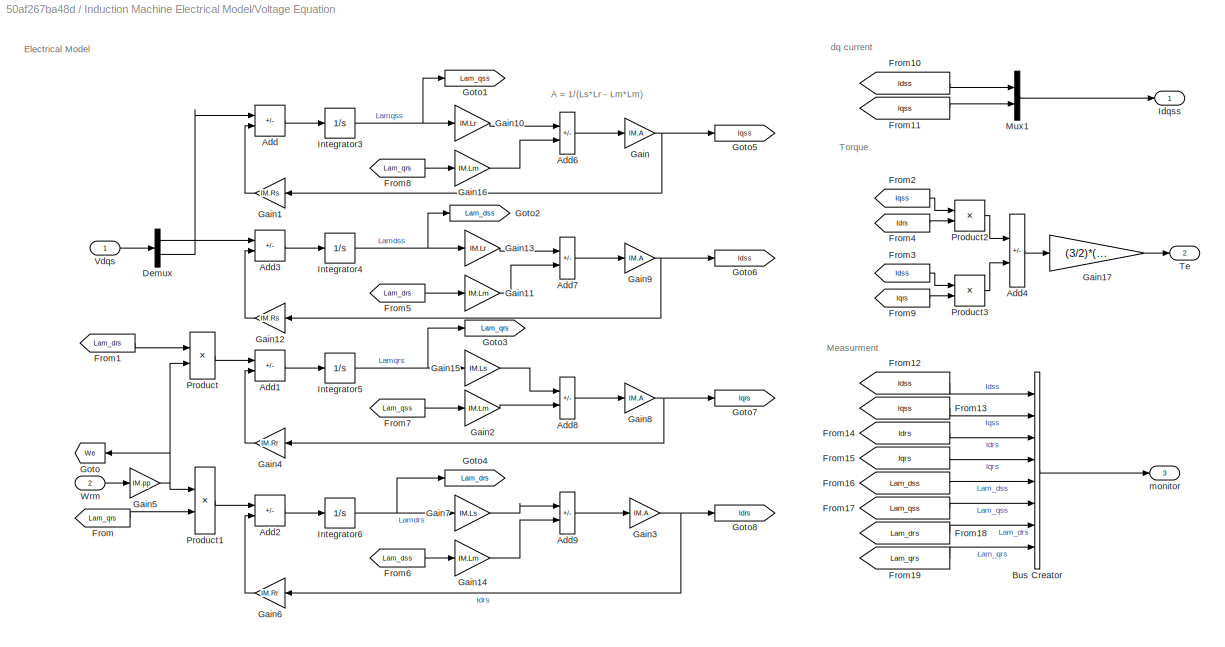
BLOCK [SubSystem] Induction Machine Electrical Model/Voltage Equation
  Ports = [2, 3]
  RequestExecContextInheritance = off
BLOCK [Sum] Induction Machine Electrical Model/Voltage Equation/Add
  IconShape = rectangular
  Inputs = +-
  Ports = [2, 1]
BLOCK [Sum] Induction Machine Electrical Model/Voltage Equation/Add1
  IconShape = rectangular
  Inputs = +-
  Ports = [2, 1]
BLOCK [Sum] Induction Machine Electrical Model/Voltage Equation/Add2
  IconShape = rectangular
  Inputs = --
  Ports = [2, 1]
BLOCK [Sum] Induction Machine Electrical Model/Voltage Equation/Add3
  IconShape = rectangular
  Inputs = +-
  Ports = [2, 1]
BLOCK [Sum] Induction Machine Electrical Model/Voltage Equation/Add4
  IconShape = rectangular
  Inputs = +-
  Ports = [2, 1]
BLOCK [Sum] Induction Machine Electrical Model/Voltage Equation/Add6
  IconShape = rectangular
  Inputs = +-
  Ports = [2, 1]
BLOCK [Sum] Induction Machine Electrical Model/Voltage Equation/Add7
  IconShape = rectangular
  Inputs = +-
  Ports = [2, 1]
BLOCK [Sum] Induction Machine Electrical Model/Voltage Equation/Add8
  IconShape = rectangular
  Inputs = +-
  Ports = [2, 1]
BLOCK [Sum] Induction Machine Electrical Model/Voltage Equation/Add9
  IconShape = rectangular
  Inputs = +-
  Ports = [2, 1]
BLOCK [BusCreator] Induction Machine Electrical Model/Voltage Equation/Bus Creator
  DisplayOption = bar
  InheritFromInputs = on
  Inputs = 8
  Ports = [8, 1]
BLOCK [Demux] Induction Machine Electrical Model/Voltage Equation/Demux
  Outputs = 2
  Ports = [1, 2]
BLOCK [From] Induction Machine Electrical Model/Voltage Equation/From
  GotoTag = Lam_qrs
BLOCK [From] Induction Machine Electrical Model/Voltage Equation/From1
  GotoTag = Lam_drs
BLOCK [From] Induction Machine Electrical Model/Voltage Equation/From10
  GotoTag = Idss
BLOCK [From] Induction Machine Electrical Model/Voltage Equation/From11
  GotoTag = Iqss
BLOCK [From] Induction Machine Electrical Model/Voltage Equation/From12
  GotoTag = Idss
BLOCK [From] Induction Machine Electrical Model/Voltage Equation/From13
  GotoTag = Iqss
BLOCK [From] Induction Machine Electrical Model/Voltage Equation/From14
  GotoTag = Idrs
BLOCK [From] Induction Machine Electrical Model/Voltage Equation/From15
  GotoTag = Iqrs
BLOCK [From] Induction Machine Electrical Model/Voltage Equation/From16
  GotoTag = Lam_dss
BLOCK [From] Induction Machine Electrical Model/Voltage Equation/From17
  GotoTag = Lam_qss
BLOCK [From] Induction Machine Electrical Model/Voltage Equation/From18
  GotoTag = Lam_drs
BLOCK [From] Induction Machine Electrical Model/Voltage Equation/From19
  GotoTag = Lam_qrs
BLOCK [From] Induction Machine Electrical Model/Voltage Equation/From2
  GotoTag = Iqss
BLOCK [From] Induction Machine Electrical Model/Voltage Equation/From3
  GotoTag = Idss
BLOCK [From] Induction Machine Electrical Model/Voltage Equation/From4
  GotoTag = Idrs
BLOCK [From] Induction Machine Electrical Model/Voltage Equation/From5
  GotoTag = Lam_drs
BLOCK [From] Induction Machine Electrical Model/Voltage Equation/From6
  GotoTag = Lam_dss
BLOCK [From] Induction Machine Electrical Model/Voltage Equation/From7
  GotoTag = Lam_qss
BLOCK [From] Induction Machine Electrical Model/Voltage Equation/From8
  GotoTag = Lam_qrs
BLOCK [From] Induction Machine Electrical Model/Voltage Equation/From9
  GotoTag = Iqrs
BLOCK [Gain] Induction Machine Electrical Model/Voltage Equation/Gain
  Gain = IM.A
BLOCK [Gain] Induction Machine Electrical Model/Voltage Equation/Gain1
  Gain = IM.Rs
  NameLocation = top
BLOCK [Gain] Induction Machine Electrical Model/Voltage Equation/Gain10
  Gain = IM.Lr
BLOCK [Gain] Induction Machine Electrical Model/Voltage Equation/Gain11
  Gain = IM.Lm
BLOCK [Gain] Induction Machine Electrical Model/Voltage Equation/Gain12
  Gain = IM.Rs
  NameLocation = top
BLOCK [Gain] Induction Machine Electrical Model/Voltage Equation/Gain13
  Gain = IM.Lr
BLOCK [Gain] Induction Machine Electrical Model/Voltage Equation/Gain14
  Gain = IM.Lm
BLOCK [Gain] Induction Machine Electrical Model/Voltage Equation/Gain15
  Gain = IM.Ls
BLOCK [Gain] Induction Machine Electrical Model/Voltage Equation/Gain16
  Gain = IM.Lm
BLOCK [Gain] Induction Machine Electrical Model/Voltage Equation/Gain17
  Gain = (3/2)*(IM.p/2)*IM.Lm
BLOCK [Gain] Induction Machine Electrical Model/Voltage Equation/Gain2
  Gain = IM.Lm
BLOCK [Gain] Induction Machine Electrical Model/Voltage Equation/Gain3
  Gain = IM.A
BLOCK [Gain] Induction Machine Electrical Model/Voltage Equation/Gain4
  Gain = IM.Rr
  NameLocation = top
BLOCK [Gain] Induction Machine Electrical Model/Voltage Equation/Gain5
  Gain = IM.pp
BLOCK [Gain] Induction Machine Electrical Model/Voltage Equation/Gain6
  Gain = IM.Rr
  NameLocation = top
BLOCK [Gain] Induction Machine Electrical Model/Voltage Equation/Gain7
  Gain = IM.Ls
BLOCK [Gain] Induction Machine Electrical Model/Voltage Equation/Gain8
  Gain = IM.A
BLOCK [Gain] Induction Machine Electrical Model/Voltage Equation/Gain9
  Gain = IM.A
BLOCK [Goto] Induction Machine Electrical Model/Voltage Equation/Goto
  GotoTag = We
  NameLocation = top
  TagVisibility = global
BLOCK [Goto] Induction Machine Electrical Model/Voltage Equation/Goto1
  GotoTag = Lam_qss
BLOCK [Goto] Induction Machine Electrical Model/Voltage Equation/Goto2
  GotoTag = Lam_dss
BLOCK [Goto] Induction Machine Electrical Model/Voltage Equation/Goto3
  GotoTag = Lam_qrs
BLOCK [Goto] Induction Machine Electrical Model/Voltage Equation/Goto4
  GotoTag = Lam_drs
BLOCK [Goto] Induction Machine Electrical Model/Voltage Equation/Goto5
  GotoTag = Iqss
BLOCK [Goto] Induction Machine Electrical Model/Voltage Equation/Goto6
  GotoTag = Idss
BLOCK [Goto] Induction Machine Electrical Model/Voltage Equation/Goto7
  GotoTag = Iqrs
BLOCK [Goto] Induction Machine Electrical Model/Voltage Equation/Goto8
  GotoTag = Idrs
BLOCK [Outport] Induction Machine Electrical Model/Voltage Equation/Idqss
  VectorParamsAs1DForOutWhenUnconnected = off
BLOCK [Integrator] Induction Machine Electrical Model/Voltage Equation/Integrator3
  Ports = [1, 1]
BLOCK [Integrator] Induction Machine Electrical Model/Voltage Equation/Integrator4
  Ports = [1, 1]
BLOCK [Integrator] Induction Machine Electrical Model/Voltage Equation/Integrator5
  Ports = [1, 1]
BLOCK [Integrator] Induction Machine Electrical Model/Voltage Equation/Integrator6
  Ports = [1, 1]
BLOCK [Mux] Induction Machine Electrical Model/Voltage Equation/Mux1
  DisplayOption = bar
  Inputs = 2
  Ports = [2, 1]
BLOCK [Product] Induction Machine Electrical Model/Voltage Equation/Product
  Ports = [2, 1]
BLOCK [Product] Induction Machine Electrical Model/Voltage Equation/Product1
  Ports = [2, 1]
BLOCK [Product] Induction Machine Electrical Model/Voltage Equation/Product2
  Ports = [2, 1]
BLOCK [Product] Induction Machine Electrical Model/Voltage Equation/Product3
  Ports = [2, 1]
BLOCK [Outport] Induction Machine Electrical Model/Voltage Equation/Te
  Port = 2
  VectorParamsAs1DForOutWhenUnconnected = off
BLOCK [Inport] Induction Machine Electrical Model/Voltage Equation/Vdqs
BLOCK [Inport] Induction Machine Electrical Model/Voltage Equation/Wrm
  Port = 2
BLOCK [Outport] Induction Machine Electrical Model/Voltage Equation/monitor
  Port = 3
  VectorParamsAs1DForOutWhenUnconnected = off
BLOCK [Inport] Induction Machine Electrical Model/Wm
  NameLocation = left
  Port = 2
BLOCK [SubSystem] Induction Machine Electrical Model/Xabcs → Xdqs
  Ports = [1, 1]
  RequestExecContextInheritance = off
BLOCK [Sum] Induction Machine Electrical Model/Xabcs → Xdqs/Add
  IconShape = rectangular
  Inputs = +--
  Ports = [3, 1]
BLOCK [Sum] Induction Machine Electrical Model/Xabcs → Xdqs/Add1
  IconShape = rectangular
  Inputs = +-
  Ports = [2, 1]
BLOCK [Demux] Induction Machine Electrical Model/Xabcs → Xdqs/Demux
  Outputs = 3
  Ports = [1, 3]
BLOCK [Gain] Induction Machine Electrical Model/Xabcs → Xdqs/Gain
  Gain = 2
BLOCK [Gain] Induction Machine Electrical Model/Xabcs → Xdqs/Gain1
  Gain = 1/3
BLOCK [Gain] Induction Machine Electrical Model/Xabcs → Xdqs/Gain2
  Gain = 1/sqrt(3)
BLOCK [Mux] Induction Machine Electrical Model/Xabcs → Xdqs/Mux
  DisplayOption = bar
  Inputs = 2
  Ports = [2, 1]
BLOCK [Inport] Induction Machine Electrical Model/Xabcs → Xdqs/Xabcs
BLOCK [Outport] Induction Machine Electrical Model/Xabcs → Xdqs/Xdqs
  VectorParamsAs1DForOutWhenUnconnected = off
BLOCK [SubSystem] Induction Machine Electrical Model/Xdqs → Xabcs
  Ports = [1, 1]
  RequestExecContextInheritance = off
BLOCK [Sum] Induction Machine Electrical Model/Xdqs → Xabcs/Add
  IconShape = rectangular
  Inputs = -+
  Ports = [2, 1]
BLOCK [Sum] Induction Machine Electrical Model/Xdqs → Xabcs/Add1
  IconShape = rectangular
  Inputs = --
  Ports = [2, 1]
BLOCK [Demux] Induction Machine Electrical Model/Xdqs → Xabcs/Demux
  Outputs = 2
  Ports = [1, 2]
BLOCK [Gain] Induction Machine Electrical Model/Xdqs → Xabcs/Gain
  Gain = 1/2
BLOCK [Gain] Induction Machine Electrical Model/Xdqs → Xabcs/Gain1
  Gain = sqrt(3)/2
BLOCK [Mux] Induction Machine Electrical Model/Xdqs → Xabcs/Mux
  DisplayOption = bar
  Inputs = 3
  Ports = [3, 1]
BLOCK [Outport] Induction Machine Electrical Model/Xdqs → Xabcs/Xabc
  VectorParamsAs1DForOutWhenUnconnected = off
BLOCK [Inport] Induction Machine Electrical Model/Xdqs → Xabcs/Xdqs
BLOCK [SubSystem] Mech.System
  NameLocation = left
  PortSchema = {"entries":[{"content":{"sides":[{"content":{"connectorIds":[]},"type":"ConnectorPlacement.EquallySpacedRectSide","uuid":"7816393c-e6ef-44df-b641-25156ded1cdc"},{"content":{"connectorIds":["Out1","Out2"],"side":"RIGHT"},"type":"ConnectorPlacement.EquallySpacedRectSide","uuid":"df3d9513-253d-4c97-8efd-af2438fb286e"},{"content":{"connectorIds":["In1"],"side":"TOP"},"type":"ConnectorPlacement.Equally...<+396ch>
  Ports = [2, 2]
  RequestExecContextInheritance = off
BLOCK [SubSystem] Mech.System/Bound PI
  Ports = [1, 1]
  RequestExecContextInheritance = off
BLOCK [Fcn] Mech.System/Bound PI/Fcn1
  Expr = 1/(2*pi)*u+0.5
BLOCK [Fcn] Mech.System/Bound PI/Fcn2
  Expr = u-floor(u)
BLOCK [Fcn] Mech.System/Bound PI/Fcn3
  Expr = 2*pi*(u-0.5)
BLOCK [Inport] Mech.System/Bound PI/In
BLOCK [Outport] Mech.System/Bound PI/Out
BLOCK [From] Mech.System/From
  GotoTag = Te_1
BLOCK [From] Mech.System/From1
  GotoTag = Te_2
BLOCK [From] Mech.System/From6
  GotoTag = Wm
BLOCK [From] Mech.System/From7
  GotoTag = Te
BLOCK [Gain] Mech.System/Gain
  Gain = 1/(DCMotor.J + IM.Jm)
BLOCK [Gain] Mech.System/Gain1
  Gain = DCMotor.B + IM.Bm
BLOCK [Goto] Mech.System/Goto
  GotoTag = Te_1
BLOCK [Goto] Mech.System/Goto1
  GotoTag = Te_2
BLOCK [Goto] Mech.System/Goto2
  GotoTag = Te
BLOCK [Goto] Mech.System/Goto7
  GotoTag = Wm
BLOCK [Integrator] Mech.System/Integrator
  Ports = [1, 1]
BLOCK [Integrator] Mech.System/Integrator1
  Ports = [1, 1]
BLOCK [Scope] Mech.System/Scope
  Floating = off
  NumInputPorts = 2
  Ports = [2]
  ScopeSpecificationString = Simulink.scopes.TimeScopeBlockCfg('CurrentConfiguration', extmgr.ConfigurationSet(extmgr.Configuration('Core','General UI',true),extmgr.Configuration('Core','Source UI',true),extmgr.Configuration('Sources','WiredSimulink',true,'DataLoggingVariableName','ScopeData1'),extmgr.Configuration('Visuals','Time Domain',true,'SerializedDisplays',{struct('MinYLimReal','-4.00012','MaxYLimReal','36.00108','YLa...<+2064ch>
BLOCK [Sum] Mech.System/Sum
  Inputs = |+-
  Ports = [2, 1]
BLOCK [Sum] Mech.System/Sum2
  Inputs = |+-
  Ports = [2, 1]
BLOCK [Inport] Mech.System/Te1
BLOCK [Inport] Mech.System/Te2
  Port = 2
BLOCK [Outport] Mech.System/Thetar
  VectorParamsAs1DForOutWhenUnconnected = off
BLOCK [Outport] Mech.System/Wr
  Port = 2
BLOCK [Scope] Scope
  Floating = off
  NumInputPorts = 4
  Ports = [4]
  ScopeSpecificationString = Simulink.scopes.TimeScopeBlockCfg('CurrentConfiguration', extmgr.ConfigurationSet(extmgr.Configuration('Core','General UI',true),extmgr.Configuration('Core','Source UI',true),extmgr.Configuration('Sources','WiredSimulink',true),extmgr.Configuration('Visuals','Time Domain',true,'SerializedDisplays',{struct('MinYLimReal','-37.5','MaxYLimReal','337.5','YLabelReal','','MinYLimMag','0.00000','MaxYLimMa...<+3588ch>
BLOCK [From] Speed sensing
  GotoTag = Wrm
ANNOTATION (root): Induction Machine Dynamometer 2022. 03. 05, by Hyeonjun Lee https://ipmsm.github.io
ANNOTATION (root): Control Boards
ANNOTATION (root): Dynamometer
ANNOTATION (root): Power Stage
ANNOTATION DC Machine Electrical Model: DC Machine Electrical Model
ANNOTATION DC Machine Electrical Model: DC Machine Mech Model
ANNOTATION DCM Control Board/Control Programs: Current Controller
ANNOTATION DCM Control Board/Control Programs: Gatings
ANNOTATION DCM Control Board/Control Programs: Inputs
ANNOTATION DCM Control Board/Control Programs: Speed Controller
ANNOTATION DCM Control Board/Control Programs: Torque command, Current refrence generation
ANNOTATION DCM Control Board/Control Programs: Unit transfroms
ANNOTATION DCM Control Board/Control Programs/Speed Controller: Te*
ANNOTATION IM Control Board/Control Programs: Stage.2 Drive Algorithm
ANNOTATION IM Control Board/Control Programs: Stage.3 Drive Mode Selec.
ANNOTATION IM Control Board/Control Programs: Stage.4 PWM
ANNOTATION IM Control Board/Control Programs: Stage .1
ANNOTATION IM Control Board/Control Programs: Drive Mode Multi-Port Selection
ANNOTATION IM Control Board/Control Programs: DriveMode.1 V/F Operation
ANNOTATION IM Control Board/Control Programs: DriveMode.2 Vector Control
ANNOTATION IM Control Board/Control Programs: DriveMode.3 Parameter Identification
ANNOTATION IM Control Board/Control Programs: Inputs
ANNOTATION IM Control Board/Control Programs: Pulse Width Modulation , OverModulation
ANNOTATION IM Control Board/Control Programs/PWM: Inputs
ANNOTATION IM Control Board/Control Programs/PWM: Output
ANNOTATION IM Control Board/Control Programs/PWM: SCSVPWM
ANNOTATION IM Control Board/Control Programs/PWM: Voltage Hexagon Bound
ANNOTATION IM Control Board/Control Programs/VF Control: Acc / Dcc
ANNOTATION IM Control Board/Control Programs/VF Control: DQ Trnasform
ANNOTATION IM Control Board/Control Programs/VF Control: Inputs
ANNOTATION IM Control Board/Control Programs/VF Control: Output
ANNOTATION IM Control Board/Control Programs/VF Control: V/F Logic & Const V Operation
ANNOTATION IM Control Board/Control Programs/Vector Controller: Current Controller
ANNOTATION IM Control Board/Control Programs/Vector Controller: Indirect Theta Calculation
ANNOTATION IM Control Board/Control Programs/Vector Controller: Inputs
ANNOTATION IM Control Board/Control Programs/Vector Controller: Speed Controller
ANNOTATION IM Control Board/Control Programs/Vector Controller: Torque selection
ANNOTATION IM Control Board/Control Programs/Vector Controller: Transforms
ANNOTATION IM Control Board/Control Programs/Vector Controller: Transforms 3
ANNOTATION IM Control Board/Control Programs/Vector Controller: Transforms2
ANNOTATION IM Control Board/Control Programs/Vector Controller: d-axis currrent command generator
ANNOTATION IM Control Board/Control Programs/Vector Controller: q-axis current command generator
ANNOTATION IM Control Board/Control Programs/Vector Controller/Current controller : Input Varible
ANNOTATION IM Control Board/Control Programs/Vector Controller/Current controller : Output
ANNOTATION IM Control Board/Control Programs/Vector Controller/Current controller : d-axes current controller
ANNOTATION IM Control Board/Control Programs/Vector Controller/Current controller : dq axes feed foward
ANNOTATION IM Control Board/Control Programs/Vector Controller/Current controller : q -axes current controller
ANNOTATION IM Control Board/Control Programs/Vector Controller/Speed Controller: PI-IP Speed Controller
ANNOTATION Induction Machine Electrical Model: Induction Motor
ANNOTATION Induction Machine Electrical Model: Inputs
ANNOTATION Induction Machine Electrical Model: Output
ANNOTATION Induction Machine Electrical Model/Voltage Equation: A = 1/(Ls*Lr - Lm*Lm)
ANNOTATION Induction Machine Electrical Model/Voltage Equation: Electrical Model
ANNOTATION Induction Machine Electrical Model/Voltage Equation: Measurment
ANNOTATION Induction Machine Electrical Model/Voltage Equation: Torque
ANNOTATION Induction Machine Electrical Model/Voltage Equation: dq current
ANNOTATION Mech.System: Inputs
ANNOTATION Mech.System: Mechanical Systems
LINE Current Sensing:1 -> DCM Control Board:4
LINE DC Machine Electrical Model/1//La2:1 -> DC Machine Electrical Model/Sum:2
LINE DC Machine Electrical Model/Gain2:1 -> DC Machine Electrical Model/Integrator1:1
LINE DC Machine Electrical Model/Gain3:1 -> DC Machine Electrical Model/Sum:3
NET DC Machine Electrical Model/Gain4:1 -> DC Machine Electrical Model/Goto:1, DC Machine Electrical Model/Te:1
NET DC Machine Electrical Model/Integrator1:1 -> DC Machine Electrical Model/Gain3:1, DC Machine Electrical Model/Gain4:1, DC Machine Electrical Model/Ia:1
LINE DC Machine Electrical Model/Sum:1 -> DC Machine Electrical Model/Gain2:1
LINE DC Machine Electrical Model/Va:1 -> DC Machine Electrical Model/Sum:1
LINE DC Machine Electrical Model/Wrm:1 -> DC Machine Electrical Model/1//La2:1
LINE DC Machine Electrical Model:1 -> Goto7:1
LINE DC Machine Electrical Model:2 -> Mech.System:2
LINE DC Power Supply/Constant:1 -> DC Power Supply/Vdc:1
NET DC Power Supply:1 -> Goto5:1, INV1:2, INV2:2
LINE DCM Control Board/Control Programs/1//LAMpm:1 -> DCM Control Board/Control Programs/Ia limit:1
LINE DCM Control Board/Control Programs/Current Controller/Anti-Wind up Gain1:1 -> DCM Control Board/Control Programs/Current Controller/Sum7:2
LINE DCM Control Board/Control Programs/Current Controller/Discrete-Time Integrator:1 -> DCM Control Board/Control Programs/Current Controller/Sum5:2
LINE DCM Control Board/Control Programs/Current Controller/Ea_est:1 -> DCM Control Board/Control Programs/Current Controller/Goto:1
LINE DCM Control Board/Control Programs/Current Controller/From:1 -> DCM Control Board/Control Programs/Current Controller/Sum6:2
LINE DCM Control Board/Control Programs/Current Controller/I Gain1:1 -> DCM Control Board/Control Programs/Current Controller/Discrete-Time Integrator:1
LINE DCM Control Board/Control Programs/Current Controller/Ia*:1 -> DCM Control Board/Control Programs/Current Controller/Sum1:1
LINE DCM Control Board/Control Programs/Current Controller/Ia:1 -> DCM Control Board/Control Programs/Current Controller/Sum1:2
LINE DCM Control Board/Control Programs/Current Controller/P Gain1:1 -> DCM Control Board/Control Programs/Current Controller/Sum5:1
NET DCM Control Board/Control Programs/Current Controller/Sum1:1 -> DCM Control Board/Control Programs/Current Controller/P Gain1:1, DCM Control Board/Control Programs/Current Controller/Sum7:1
LINE DCM Control Board/Control Programs/Current Controller/Sum5:1 -> DCM Control Board/Control Programs/Current Controller/Sum6:1
NET DCM Control Board/Control Programs/Current Controller/Sum6:1 -> DCM Control Board/Control Programs/Current Controller/Sum8:1, DCM Control Board/Control Programs/Current Controller/limiter:1
LINE DCM Control Board/Control Programs/Current Controller/Sum7:1 -> DCM Control Board/Control Programs/Current Controller/I Gain1:1
LINE DCM Control Board/Control Programs/Current Controller/Sum8:1 -> DCM Control Board/Control Programs/Current Controller/Anti-Wind up Gain1:1
NET DCM Control Board/Control Programs/Current Controller/limiter:1 -> DCM Control Board/Control Programs/Current Controller/Sum8:2, DCM Control Board/Control Programs/Current Controller/Va*:1
LINE DCM Control Board/Control Programs/Current Controller:1 -> DCM Control Board/Control Programs/Goto8:1
LINE DCM Control Board/Control Programs/Divide:1 -> DCM Control Board/Control Programs/Counter:1
LINE DCM Control Board/Control Programs/From10:1 -> DCM Control Board/Control Programs/Divide:1
LINE DCM Control Board/Control Programs/From11:1 -> DCM Control Board/Control Programs/Divide:2
LINE DCM Control Board/Control Programs/From1:1 -> DCM Control Board/Control Programs/Gain:1
LINE DCM Control Board/Control Programs/From2:1 -> DCM Control Board/Control Programs/Speed Controller:1
LINE DCM Control Board/Control Programs/From3:1 -> DCM Control Board/Control Programs/Speed Controller:2
LINE DCM Control Board/Control Programs/From4:1 -> DCM Control Board/Control Programs/Switch:3
LINE DCM Control Board/Control Programs/From5:1 -> DCM Control Board/Control Programs/Switch:1
LINE DCM Control Board/Control Programs/From6:1 -> DCM Control Board/Control Programs/Switch:2
LINE DCM Control Board/Control Programs/From7:1 -> DCM Control Board/Control Programs/1//LAMpm:1
LINE DCM Control Board/Control Programs/From8:1 -> DCM Control Board/Control Programs/Current Controller:1
LINE DCM Control Board/Control Programs/From9:1 -> DCM Control Board/Control Programs/Current Controller:2
LINE DCM Control Board/Control Programs/From:1 -> DCM Control Board/Control Programs/Gain2:1
LINE DCM Control Board/Control Programs/Gain2:1 -> DCM Control Board/Control Programs/Current Controller:3
LINE DCM Control Board/Control Programs/Gain:1 -> DCM Control Board/Control Programs/Goto1:1
LINE DCM Control Board/Control Programs/Ia limit:1 -> DCM Control Board/Control Programs/Goto7:1
LINE DCM Control Board/Control Programs/Ia:1 -> DCM Control Board/Control Programs/Goto2:1
LINE DCM Control Board/Control Programs/Operation Mode:1 -> DCM Control Board/Control Programs/Goto4:1
LINE DCM Control Board/Control Programs/Speed Controller/Discrete-Time Integrator:1 -> DCM Control Board/Control Programs/Speed Controller/Sum3:2
LINE DCM Control Board/Control Programs/Speed Controller/Ksa:1 -> DCM Control Board/Control Programs/Speed Controller/Sum2:2
LINE DCM Control Board/Control Programs/Speed Controller/Ksi:1 -> DCM Control Board/Control Programs/Speed Controller/Discrete-Time Integrator:1
LINE DCM Control Board/Control Programs/Speed Controller/Ksp:1 -> DCM Control Board/Control Programs/Speed Controller/Sum3:1
LINE DCM Control Board/Control Programs/Speed Controller/Sum2:1 -> DCM Control Board/Control Programs/Speed Controller/Ksi:1
NET DCM Control Board/Control Programs/Speed Controller/Sum3:1 -> DCM Control Board/Control Programs/Speed Controller/Sum4:1, DCM Control Board/Control Programs/Speed Controller/Te-limiter:1
LINE DCM Control Board/Control Programs/Speed Controller/Sum4:1 -> DCM Control Board/Control Programs/Speed Controller/Ksa:1
NET DCM Control Board/Control Programs/Speed Controller/Sum:1 -> DCM Control Board/Control Programs/Speed Controller/Ksp:1, DCM Control Board/Control Programs/Speed Controller/Sum2:1
NET DCM Control Board/Control Programs/Speed Controller/Te-limiter:1 -> DCM Control Board/Control Programs/Speed Controller/Sum4:2, DCM Control Board/Control Programs/Speed Controller/Te*:1
LINE DCM Control Board/Control Programs/Speed Controller/Wm*:1 -> DCM Control Board/Control Programs/Speed Controller/Sum:1
LINE DCM Control Board/Control Programs/Speed Controller/Wm:1 -> DCM Control Board/Control Programs/Speed Controller/Sum:2
LINE DCM Control Board/Control Programs/Speed Controller:1 -> DCM Control Board/Control Programs/Goto5:1
LINE DCM Control Board/Control Programs/Speed*:1 -> DCM Control Board/Control Programs/RPM:1
LINE DCM Control Board/Control Programs/Switch:1 -> DCM Control Board/Control Programs/Goto6:1
LINE DCM Control Board/Control Programs/Torque*:1 -> DCM Control Board/Control Programs/Goto:1
LINE DCM Control Board/Control Programs/Vdc:1 -> DCM Control Board/Control Programs/Goto9:1
LINE DCM Control Board/Control Programs/Wm:1 -> DCM Control Board/Control Programs/Goto3:1
LINE DCM Control Board/Control Programs:1 -> DCM Control Board/PWM Module:1
LINE DCM Control Board/Fsw:1 -> DCM Control Board/Control Programs:trigger
LINE DCM Control Board/Gain:1 -> DCM Control Board/Control Programs:3
LINE DCM Control Board/Ia:1 -> DCM Control Board/Control Programs:4
LINE DCM Control Board/PWM Module/1//3:1 -> DCM Control Board/PWM Module/Relational Operator1:1
NET DCM Control Board/PWM Module/Carrier wave:1 -> DCM Control Board/PWM Module/Relational Operator1:2, DCM Control Board/PWM Module/Relational Operator:2
NET DCM Control Board/PWM Module/Counter:1 -> DCM Control Board/PWM Module/1//3:1, DCM Control Board/PWM Module/Relational Operator:1
LINE DCM Control Board/PWM Module/Relational Operator1:1 -> DCM Control Board/PWM Module/Sum2:2
LINE DCM Control Board/PWM Module/Relational Operator:1 -> DCM Control Board/PWM Module/Sum2:1
LINE DCM Control Board/PWM Module/Sum2:1 -> DCM Control Board/PWM Module/Gating:1
LINE DCM Control Board/PWM Module:1 -> DCM Control Board/Gatings*:1
LINE DCM Control Board/Speed*:1 -> DCM Control Board/Control Programs:1
LINE DCM Control Board/Torque*:1 -> DCM Control Board/Control Programs:2
LINE DCM Control Board/Vdc:1 -> DCM Control Board/Control Programs:5
LINE DCM Control Board/Wm:1 -> DCM Control Board/Gain:1
LINE DCM Control Board:1 -> Goto6:1
LINE From10:1 -> DC Machine Electrical Model:2
LINE From11:1 -> Scope:1
LINE From12:1 -> IM Control Board:4
LINE From13:1 -> IM Control Board:5
LINE From14:1 -> IM Control Board:6
LINE From1:1 -> Induction Machine Electrical Model:1
LINE From2:1 -> Scope:2
LINE From3:1 -> IM Control Board:3
LINE From4:1 -> Scope:3
LINE From5:1 -> DCM Control Board:5
LINE From6:1 -> Induction Machine Electrical Model:2
LINE From7:1 -> Scope:4
LINE From8:1 -> INV2:1
LINE From9:1 -> DC Machine Electrical Model:1
LINE From:1 -> INV1:1
LINE IM Control Board/Control Programs/Constant:1 -> IM Control Board/Control Programs/Switch:2
LINE IM Control Board/Control Programs/From1:1 -> IM Control Board/Control Programs/PWM:1
LINE IM Control Board/Control Programs/From2:1 -> IM Control Board/Control Programs/Vector Controller:2
LINE IM Control Board/Control Programs/From47:1 -> IM Control Board/Control Programs/PWM:2
LINE IM Control Board/Control Programs/From4:1 -> IM Control Board/Control Programs/VF Control:1
LINE IM Control Board/Control Programs/From5:1 -> IM Control Board/Control Programs/Vector Controller:3
LINE IM Control Board/Control Programs/From6:1 -> IM Control Board/Control Programs/Vector Controller:4
LINE IM Control Board/Control Programs/From7:1 -> IM Control Board/Control Programs/Switch:3
LINE IM Control Board/Control Programs/From8:1 -> IM Control Board/Control Programs/Switch:1
LINE IM Control Board/Control Programs/From9:1 -> IM Control Board/Control Programs/Vector Controller:5
LINE IM Control Board/Control Programs/From:1 -> IM Control Board/Control Programs/Vector Controller:1
LINE IM Control Board/Control Programs/Iabcs:1 -> IM Control Board/Control Programs/Goto7:1
LINE IM Control Board/Control Programs/PWM/Add1:1 -> IM Control Board/Control Programs/PWM/Goto3:1
LINE IM Control Board/Control Programs/PWM/Add3:1 -> IM Control Board/Control Programs/PWM/Counter:1
LINE IM Control Board/Control Programs/PWM/Constant:1 -> IM Control Board/Control Programs/PWM/Add3:1
LINE IM Control Board/Control Programs/PWM/Divide3:1 -> IM Control Board/Control Programs/PWM/Add3:2
LINE IM Control Board/Control Programs/PWM/From10:1 -> IM Control Board/Control Programs/PWM/Vsn : Min//Max:1
LINE IM Control Board/Control Programs/PWM/From1:1 -> IM Control Board/Control Programs/PWM/Gain3:1
LINE IM Control Board/Control Programs/PWM/From2:1 -> IM Control Board/Control Programs/PWM/Divide3:1
LINE IM Control Board/Control Programs/PWM/From3:1 -> IM Control Board/Control Programs/PWM/Add1:1
LINE IM Control Board/Control Programs/PWM/From4:1 -> IM Control Board/Control Programs/PWM/Divide3:2
LINE IM Control Board/Control Programs/PWM/From5:1 -> IM Control Board/Control Programs/PWM/Add1:2
LINE IM Control Board/Control Programs/PWM/From6:1 -> IM Control Board/Control Programs/PWM/Saturation Dynamic:2
LINE IM Control Board/Control Programs/PWM/From9:1 -> IM Control Board/Control Programs/PWM/abc2dq:1
LINE IM Control Board/Control Programs/PWM/From:1 -> IM Control Board/Control Programs/PWM/Gain2:1
LINE IM Control Board/Control Programs/PWM/Gain2:1 -> IM Control Board/Control Programs/PWM/Saturation Dynamic:3
LINE IM Control Board/Control Programs/PWM/Gain3:1 -> IM Control Board/Control Programs/PWM/Saturation Dynamic:1
LINE IM Control Board/Control Programs/PWM/Saturation Dynamic:1 -> IM Control Board/Control Programs/PWM/Goto2:1
LINE IM Control Board/Control Programs/PWM/Vdc:1 -> IM Control Board/Control Programs/PWM/Goto1:1
LINE IM Control Board/Control Programs/PWM/Vdqss*:1 -> IM Control Board/Control Programs/PWM/dq2abc:1
LINE IM Control Board/Control Programs/PWM/Vsn : Min//Max/Add3:1 -> IM Control Board/Control Programs/PWM/Vsn : Min//Max/Gain1:1
NET IM Control Board/Control Programs/PWM/Vsn : Min//Max/From1:1 -> IM Control Board/Control Programs/PWM/Vsn : Min//Max/MinMax1:1, IM Control Board/Control Programs/PWM/Vsn : Min//Max/MinMax2:1
LINE IM Control Board/Control Programs/PWM/Vsn : Min//Max/Gain1:1 -> IM Control Board/Control Programs/PWM/Vsn : Min//Max/Vsn*:1
LINE IM Control Board/Control Programs/PWM/Vsn : Min//Max/MinMax1:1 -> IM Control Board/Control Programs/PWM/Vsn : Min//Max/Add3:1
LINE IM Control Board/Control Programs/PWM/Vsn : Min//Max/MinMax2:1 -> IM Control Board/Control Programs/PWM/Vsn : Min//Max/Add3:2
LINE IM Control Board/Control Programs/PWM/Vsn : Min//Max/Vabcs*:1 -> IM Control Board/Control Programs/PWM/Vsn : Min//Max/Goto:1
LINE IM Control Board/Control Programs/PWM/Vsn : Min//Max:1 -> IM Control Board/Control Programs/PWM/Goto4:1
LINE IM Control Board/Control Programs/PWM/abc2dq:1 -> IM Control Board/Control Programs/PWM/Vdqss:1
LINE IM Control Board/Control Programs/PWM/dq2abc:1 -> IM Control Board/Control Programs/PWM/Goto5:1
LINE IM Control Board/Control Programs/PWM:1 -> IM Control Board/Control Programs/Unit Delay1:1
LINE IM Control Board/Control Programs/PWM:2 -> IM Control Board/Control Programs/Goto13:1
LINE IM Control Board/Control Programs/Switch:1 -> IM Control Board/Control Programs/Goto:1
LINE IM Control Board/Control Programs/Te*:1 -> IM Control Board/Control Programs/Goto4:1
LINE IM Control Board/Control Programs/Theta_rm:1 -> IM Control Board/Control Programs/Goto2:1
LINE IM Control Board/Control Programs/Unit Delay1:1 -> IM Control Board/Control Programs/Counter:1
LINE IM Control Board/Control Programs/VF Control/Bound PI/Fcn1:1 -> IM Control Board/Control Programs/VF Control/Bound PI/Fcn2:1
LINE IM Control Board/Control Programs/VF Control/Bound PI/Fcn2:1 -> IM Control Board/Control Programs/VF Control/Bound PI/Fcn3:1
LINE IM Control Board/Control Programs/VF Control/Bound PI/Fcn3:1 -> IM Control Board/Control Programs/VF Control/Bound PI/Out:1
LINE IM Control Board/Control Programs/VF Control/Bound PI/In:1 -> IM Control Board/Control Programs/VF Control/Bound PI/Fcn1:1
LINE IM Control Board/Control Programs/VF Control/Bound PI:1 -> IM Control Board/Control Programs/VF Control/Goto8:1
LINE IM Control Board/Control Programs/VF Control/Constant1:1 -> IM Control Board/Control Programs/VF Control/Product:1
LINE IM Control Board/Control Programs/VF Control/Constant:1 -> IM Control Board/Control Programs/VF Control/Divide:2
LINE IM Control Board/Control Programs/VF Control/Cos:1 -> IM Control Board/Control Programs/VF Control/Product1:2
LINE IM Control Board/Control Programs/VF Control/Discrete-Time Integrator1:1 -> IM Control Board/Control Programs/VF Control/Bound PI:1
LINE IM Control Board/Control Programs/VF Control/Divide:1 -> IM Control Board/Control Programs/VF Control/Product:2
LINE IM Control Board/Control Programs/VF Control/From10:1 -> IM Control Board/Control Programs/VF Control/Saturation1:1
LINE IM Control Board/Control Programs/VF Control/From11:1 -> IM Control Board/Control Programs/VF Control/Discrete-Time Integrator1:1
NET IM Control Board/Control Programs/VF Control/From12:1 -> IM Control Board/Control Programs/VF Control/Product1:1, IM Control Board/Control Programs/VF Control/Product2:1
NET IM Control Board/Control Programs/VF Control/From13:1 -> IM Control Board/Control Programs/VF Control/Cos:1, IM Control Board/Control Programs/VF Control/Sin:1
LINE IM Control Board/Control Programs/VF Control/From14:1 -> IM Control Board/Control Programs/VF Control/Mux:1
LINE IM Control Board/Control Programs/VF Control/From15:1 -> IM Control Board/Control Programs/VF Control/Mux:2
LINE IM Control Board/Control Programs/VF Control/From1:1 -> IM Control Board/Control Programs/VF Control/If:1
LINE IM Control Board/Control Programs/VF Control/From2:1 -> IM Control Board/Control Programs/VF Control/IC:1
LINE IM Control Board/Control Programs/VF Control/From3:1 -> IM Control Board/Control Programs/VF Control/If Action Subsystem:ifaction
LINE IM Control Board/Control Programs/VF Control/From4:1 -> IM Control Board/Control Programs/VF Control/If Action Subsystem1:ifaction
LINE IM Control Board/Control Programs/VF Control/From5:1 -> IM Control Board/Control Programs/VF Control/If Action Subsystem2:ifaction
LINE IM Control Board/Control Programs/VF Control/From6:1 -> IM Control Board/Control Programs/VF Control/If Action Subsystem:1
LINE IM Control Board/Control Programs/VF Control/From7:1 -> IM Control Board/Control Programs/VF Control/If Action Subsystem1:1
LINE IM Control Board/Control Programs/VF Control/From8:1 -> IM Control Board/Control Programs/VF Control/If Action Subsystem2:1
LINE IM Control Board/Control Programs/VF Control/From9:1 -> IM Control Board/Control Programs/VF Control/Divide:1
LINE IM Control Board/Control Programs/VF Control/From:1 -> IM Control Board/Control Programs/VF Control/Gain1:1
LINE IM Control Board/Control Programs/VF Control/Gain1:1 -> IM Control Board/Control Programs/VF Control/Goto1:1
LINE IM Control Board/Control Programs/VF Control/Gain:1 -> IM Control Board/Control Programs/VF Control/Goto:1
LINE IM Control Board/Control Programs/VF Control/IC:1 -> IM Control Board/Control Programs/VF Control/If:2
LINE IM Control Board/Control Programs/VF Control/If Action Subsystem/Add:1 -> IM Control Board/Control Programs/VF Control/If Action Subsystem/Wr:1
LINE IM Control Board/Control Programs/VF Control/If Action Subsystem/Constant:1 -> IM Control Board/Control Programs/VF Control/If Action Subsystem/Gain:1
LINE IM Control Board/Control Programs/VF Control/If Action Subsystem/Gain:1 -> IM Control Board/Control Programs/VF Control/If Action Subsystem/Add:2
LINE IM Control Board/Control Programs/VF Control/If Action Subsystem/Wr*:1 -> IM Control Board/Control Programs/VF Control/If Action Subsystem/Add:1
LINE IM Control Board/Control Programs/VF Control/If Action Subsystem1/Add:1 -> IM Control Board/Control Programs/VF Control/If Action Subsystem1/Wr:1
LINE IM Control Board/Control Programs/VF Control/If Action Subsystem1/Constant:1 -> IM Control Board/Control Programs/VF Control/If Action Subsystem1/Gain:1
LINE IM Control Board/Control Programs/VF Control/If Action Subsystem1/Gain:1 -> IM Control Board/Control Programs/VF Control/If Action Subsystem1/Add:2
LINE IM Control Board/Control Programs/VF Control/If Action Subsystem1/Wr*:1 -> IM Control Board/Control Programs/VF Control/If Action Subsystem1/Add:1
LINE IM Control Board/Control Programs/VF Control/If Action Subsystem1:1 -> IM Control Board/Control Programs/VF Control/Merge:2
LINE IM Control Board/Control Programs/VF Control/If Action Subsystem2/Wr*:1 -> IM Control Board/Control Programs/VF Control/If Action Subsystem2/Wr:1
LINE IM Control Board/Control Programs/VF Control/If Action Subsystem2:1 -> IM Control Board/Control Programs/VF Control/Merge:3
LINE IM Control Board/Control Programs/VF Control/If Action Subsystem:1 -> IM Control Board/Control Programs/VF Control/Merge:1
LINE IM Control Board/Control Programs/VF Control/If:1 -> IM Control Board/Control Programs/VF Control/Goto2:1
LINE IM Control Board/Control Programs/VF Control/If:2 -> IM Control Board/Control Programs/VF Control/Goto3:1
LINE IM Control Board/Control Programs/VF Control/If:3 -> IM Control Board/Control Programs/VF Control/Goto4:1
LINE IM Control Board/Control Programs/VF Control/Merge:1 -> IM Control Board/Control Programs/VF Control/Unit Delay:1
LINE IM Control Board/Control Programs/VF Control/Mux:1 -> IM Control Board/Control Programs/VF Control/Vdqss*:1
LINE IM Control Board/Control Programs/VF Control/Product1:1 -> IM Control Board/Control Programs/VF Control/Goto9:1
LINE IM Control Board/Control Programs/VF Control/Product2:1 -> IM Control Board/Control Programs/VF Control/Goto10:1
LINE IM Control Board/Control Programs/VF Control/Product:1 -> IM Control Board/Control Programs/VF Control/Saturation2:1
LINE IM Control Board/Control Programs/VF Control/Saturation1:1 -> IM Control Board/Control Programs/VF Control/Goto7:1
LINE IM Control Board/Control Programs/VF Control/Saturation2:1 -> IM Control Board/Control Programs/VF Control/Goto6:1
LINE IM Control Board/Control Programs/VF Control/Sin:1 -> IM Control Board/Control Programs/VF Control/Product2:2
LINE IM Control Board/Control Programs/VF Control/Unit Delay:1 -> IM Control Board/Control Programs/VF Control/Goto11:1
LINE IM Control Board/Control Programs/VF Control/Wrpm*:1 -> IM Control Board/Control Programs/VF Control/Gain:1
LINE IM Control Board/Control Programs/VF Control:1 -> IM Control Board/Control Programs/Goto6:1
LINE IM Control Board/Control Programs/Vdc:1 -> IM Control Board/Control Programs/Goto3:1
LINE IM Control Board/Control Programs/Vector Controller/Current controller / :1 -> IM Control Board/Control Programs/Vector Controller/Current controller /Product2:1
LINE IM Control Board/Control Programs/Vector Controller/Current controller /Add1:1 -> IM Control Board/Control Programs/Vector Controller/Current controller /Goto8:1
LINE IM Control Board/Control Programs/Vector Controller/Current controller /Add2:1 -> IM Control Board/Control Programs/Vector Controller/Current controller /Goto9:1
LINE IM Control Board/Control Programs/Vector Controller/Current controller /Add3:1 -> IM Control Board/Control Programs/Vector Controller/Current controller /Gain1:1
NET IM Control Board/Control Programs/Vector Controller/Current controller /Add4:1 -> IM Control Board/Control Programs/Vector Controller/Current controller /Add6:1, IM Control Board/Control Programs/Vector Controller/Current controller /Gain3:1
LINE IM Control Board/Control Programs/Vector Controller/Current controller /Add5:1 -> IM Control Board/Control Programs/Vector Controller/Current controller /Goto10:1
LINE IM Control Board/Control Programs/Vector Controller/Current controller /Add6:1 -> IM Control Board/Control Programs/Vector Controller/Current controller /Gain4:1
LINE IM Control Board/Control Programs/Vector Controller/Current controller /Add7:1 -> IM Control Board/Control Programs/Vector Controller/Current controller /Goto11:1
LINE IM Control Board/Control Programs/Vector Controller/Current controller /Add8:1 -> IM Control Board/Control Programs/Vector Controller/Current controller /Goto12:1
LINE IM Control Board/Control Programs/Vector Controller/Current controller /Add9:1 -> IM Control Board/Control Programs/Vector Controller/Current controller /Goto13:1
NET IM Control Board/Control Programs/Vector Controller/Current controller /Add:1 -> IM Control Board/Control Programs/Vector Controller/Current controller /Add3:1, IM Control Board/Control Programs/Vector Controller/Current controller /Gain:1
LINE IM Control Board/Control Programs/Vector Controller/Current controller /Demux1:1 -> IM Control Board/Control Programs/Vector Controller/Current controller /Goto2:1
LINE IM Control Board/Control Programs/Vector Controller/Current controller /Demux1:2 -> IM Control Board/Control Programs/Vector Controller/Current controller /Goto3:1
LINE IM Control Board/Control Programs/Vector Controller/Current controller /Demux2:1 -> IM Control Board/Control Programs/Vector Controller/Current controller /Goto4:1
LINE IM Control Board/Control Programs/Vector Controller/Current controller /Demux2:2 -> IM Control Board/Control Programs/Vector Controller/Current controller /Goto5:1
LINE IM Control Board/Control Programs/Vector Controller/Current controller /Demux:1 -> IM Control Board/Control Programs/Vector Controller/Current controller /Goto:1
LINE IM Control Board/Control Programs/Vector Controller/Current controller /Demux:2 -> IM Control Board/Control Programs/Vector Controller/Current controller /Goto1:1
LINE IM Control Board/Control Programs/Vector Controller/Current controller /Discrete-Time Integrator1:1 -> IM Control Board/Control Programs/Vector Controller/Current controller /Add5:2
LINE IM Control Board/Control Programs/Vector Controller/Current controller /Discrete-Time Integrator:1 -> IM Control Board/Control Programs/Vector Controller/Current controller /Add1:2
LINE IM Control Board/Control Programs/Vector Controller/Current controller /From10:1 -> IM Control Board/Control Programs/Vector Controller/Current controller /Add7:2
LINE IM Control Board/Control Programs/Vector Controller/Current controller /From11:1 -> IM Control Board/Control Programs/Vector Controller/Current controller /Add7:1
LINE IM Control Board/Control Programs/Vector Controller/Current controller /From12:1 -> IM Control Board/Control Programs/Vector Controller/Current controller /Gain6:1
LINE IM Control Board/Control Programs/Vector Controller/Current controller /From13:1 -> IM Control Board/Control Programs/Vector Controller/Current controller /Sigma*Ls:1
LINE IM Control Board/Control Programs/Vector Controller/Current controller /From14:1 -> IM Control Board/Control Programs/Vector Controller/Current controller /Product:1
LINE IM Control Board/Control Programs/Vector Controller/Current controller /From15:1 -> IM Control Board/Control Programs/Vector Controller/Current controller /Gain7:1
LINE IM Control Board/Control Programs/Vector Controller/Current controller /From16:1 -> IM Control Board/Control Programs/Vector Controller/Current controller / :1
LINE IM Control Board/Control Programs/Vector Controller/Current controller /From17:1 -> IM Control Board/Control Programs/Vector Controller/Current controller /Product1:1
LINE IM Control Board/Control Programs/Vector Controller/Current controller /From18:1 -> IM Control Board/Control Programs/Vector Controller/Current controller /Sigma*Ls1:1
LINE IM Control Board/Control Programs/Vector Controller/Current controller /From19:1 -> IM Control Board/Control Programs/Vector Controller/Current controller /Mux:1
LINE IM Control Board/Control Programs/Vector Controller/Current controller /From1:1 -> IM Control Board/Control Programs/Vector Controller/Current controller /Add:1
LINE IM Control Board/Control Programs/Vector Controller/Current controller /From20:1 -> IM Control Board/Control Programs/Vector Controller/Current controller /Mux:2
LINE IM Control Board/Control Programs/Vector Controller/Current controller /From2:1 -> IM Control Board/Control Programs/Vector Controller/Current controller /Add2:2
LINE IM Control Board/Control Programs/Vector Controller/Current controller /From3:1 -> IM Control Board/Control Programs/Vector Controller/Current controller /Add2:1
LINE IM Control Board/Control Programs/Vector Controller/Current controller /From4:1 -> IM Control Board/Control Programs/Vector Controller/Current controller /Gain2:1
LINE IM Control Board/Control Programs/Vector Controller/Current controller /From5:1 -> IM Control Board/Control Programs/Vector Controller/Current controller /Add1:3
LINE IM Control Board/Control Programs/Vector Controller/Current controller /From6:1 -> IM Control Board/Control Programs/Vector Controller/Current controller /Add4:2
LINE IM Control Board/Control Programs/Vector Controller/Current controller /From7:1 -> IM Control Board/Control Programs/Vector Controller/Current controller /Add4:1
LINE IM Control Board/Control Programs/Vector Controller/Current controller /From8:1 -> IM Control Board/Control Programs/Vector Controller/Current controller /Gain5:1
LINE IM Control Board/Control Programs/Vector Controller/Current controller /From9:1 -> IM Control Board/Control Programs/Vector Controller/Current controller /Add5:3
LINE IM Control Board/Control Programs/Vector Controller/Current controller /From:1 -> IM Control Board/Control Programs/Vector Controller/Current controller /Add:2
LINE IM Control Board/Control Programs/Vector Controller/Current controller /Gain1:1 -> IM Control Board/Control Programs/Vector Controller/Current controller /Discrete-Time Integrator:1
LINE IM Control Board/Control Programs/Vector Controller/Current controller /Gain2:1 -> IM Control Board/Control Programs/Vector Controller/Current controller /Add3:2
LINE IM Control Board/Control Programs/Vector Controller/Current controller /Gain3:1 -> IM Control Board/Control Programs/Vector Controller/Current controller /Add5:1
LINE IM Control Board/Control Programs/Vector Controller/Current controller /Gain4:1 -> IM Control Board/Control Programs/Vector Controller/Current controller /Discrete-Time Integrator1:1
LINE IM Control Board/Control Programs/Vector Controller/Current controller /Gain5:1 -> IM Control Board/Control Programs/Vector Controller/Current controller /Add6:2
LINE IM Control Board/Control Programs/Vector Controller/Current controller /Gain6:1 -> IM Control Board/Control Programs/Vector Controller/Current controller /Rr*Lm//Lr^2 :1
LINE IM Control Board/Control Programs/Vector Controller/Current controller /Gain7:1 -> IM Control Board/Control Programs/Vector Controller/Current controller /Product2:2
LINE IM Control Board/Control Programs/Vector Controller/Current controller /Gain:1 -> IM Control Board/Control Programs/Vector Controller/Current controller /Add1:1
LINE IM Control Board/Control Programs/Vector Controller/Current controller /Idqse*:1 -> IM Control Board/Control Programs/Vector Controller/Current controller /Demux2:1
LINE IM Control Board/Control Programs/Vector Controller/Current controller /Idqse:1 -> IM Control Board/Control Programs/Vector Controller/Current controller /Demux1:1
LINE IM Control Board/Control Programs/Vector Controller/Current controller /Lm//Lr:1 -> IM Control Board/Control Programs/Vector Controller/Current controller /Add9:2
LINE IM Control Board/Control Programs/Vector Controller/Current controller /Mux:1 -> IM Control Board/Control Programs/Vector Controller/Current controller /Vdqse*:1
LINE IM Control Board/Control Programs/Vector Controller/Current controller /Product1:1 -> IM Control Board/Control Programs/Vector Controller/Current controller /Add9:1
LINE IM Control Board/Control Programs/Vector Controller/Current controller /Product2:1 -> IM Control Board/Control Programs/Vector Controller/Current controller /Lm//Lr:1
LINE IM Control Board/Control Programs/Vector Controller/Current controller /Product:1 -> IM Control Board/Control Programs/Vector Controller/Current controller /Add8:1
LINE IM Control Board/Control Programs/Vector Controller/Current controller /Rr*Lm//Lr^2 :1 -> IM Control Board/Control Programs/Vector Controller/Current controller /Add8:2
LINE IM Control Board/Control Programs/Vector Controller/Current controller /Sigma*Ls1:1 -> IM Control Board/Control Programs/Vector Controller/Current controller /Product1:2
LINE IM Control Board/Control Programs/Vector Controller/Current controller /Sigma*Ls:1 -> IM Control Board/Control Programs/Vector Controller/Current controller /Product:2
LINE IM Control Board/Control Programs/Vector Controller/Current controller /Vdqse:1 -> IM Control Board/Control Programs/Vector Controller/Current controller /Demux:1
LINE IM Control Board/Control Programs/Vector Controller/Current controller /We:1 -> IM Control Board/Control Programs/Vector Controller/Current controller /Goto7:1
LINE IM Control Board/Control Programs/Vector Controller/Current controller /Wrm:1 -> IM Control Board/Control Programs/Vector Controller/Current controller /Goto6:1
LINE IM Control Board/Control Programs/Vector Controller/Current controller :1 -> IM Control Board/Control Programs/Vector Controller/Goto15:1
LINE IM Control Board/Control Programs/Vector Controller/Divide:1 -> IM Control Board/Control Programs/Vector Controller/Iqse-Limiter:1
LINE IM Control Board/Control Programs/Vector Controller/Encoder:1 -> IM Control Board/Control Programs/Vector Controller/Current controller :4
LINE IM Control Board/Control Programs/Vector Controller/From10:1 -> IM Control Board/Control Programs/Vector Controller/abc → dq  rotationary:2
LINE IM Control Board/Control Programs/Vector Controller/From11:1 -> IM Control Board/Control Programs/Vector Controller/Current controller :2
LINE IM Control Board/Control Programs/Vector Controller/From12:1 -> IM Control Board/Control Programs/Vector Controller/Current controller :1
LINE IM Control Board/Control Programs/Vector Controller/From13:1 -> IM Control Board/Control Programs/Vector Controller/Indirect Theta calculation:1
LINE IM Control Board/Control Programs/Vector Controller/From14:1 -> IM Control Board/Control Programs/Vector Controller/Indirect Theta calculation:2
LINE IM Control Board/Control Programs/Vector Controller/From15:1 -> IM Control Board/Control Programs/Vector Controller/Indirect Theta calculation:3
LINE IM Control Board/Control Programs/Vector Controller/From16:1 -> IM Control Board/Control Programs/Vector Controller/Speed Controller:1
LINE IM Control Board/Control Programs/Vector Controller/From17:1 -> IM Control Board/Control Programs/Vector Controller/Speed Controller:2
LINE IM Control Board/Control Programs/Vector Controller/From18:1 -> IM Control Board/Control Programs/Vector Controller/dq rotationary → abc frame:1
LINE IM Control Board/Control Programs/Vector Controller/From19:1 -> IM Control Board/Control Programs/Vector Controller/Current controller :5
LINE IM Control Board/Control Programs/Vector Controller/From1:1 -> IM Control Board/Control Programs/Vector Controller/Gain:1
LINE IM Control Board/Control Programs/Vector Controller/From20:1 -> IM Control Board/Control Programs/Vector Controller/abc → dq rotationary:1
LINE IM Control Board/Control Programs/Vector Controller/From21:1 -> IM Control Board/Control Programs/Vector Controller/Mux:2
LINE IM Control Board/Control Programs/Vector Controller/From22:1 -> IM Control Board/Control Programs/Vector Controller/Mux:1
LINE IM Control Board/Control Programs/Vector Controller/From23:1 -> IM Control Board/Control Programs/Vector Controller/abc → dq  rotationary:1
LINE IM Control Board/Control Programs/Vector Controller/From24:1 -> IM Control Board/Control Programs/Vector Controller/Goto17:1
LINE IM Control Board/Control Programs/Vector Controller/From2:1 -> IM Control Board/Control Programs/Vector Controller/Gain3:1
LINE IM Control Board/Control Programs/Vector Controller/From3:1 -> IM Control Board/Control Programs/Vector Controller/Saturation4:1
LINE IM Control Board/Control Programs/Vector Controller/From4:1 -> IM Control Board/Control Programs/Vector Controller/Gain4:1
LINE IM Control Board/Control Programs/Vector Controller/From5:1 -> IM Control Board/Control Programs/Vector Controller/Product:2
LINE IM Control Board/Control Programs/Vector Controller/From6:1 -> IM Control Board/Control Programs/Vector Controller/Te-Limiter:1
LINE IM Control Board/Control Programs/Vector Controller/From7:1 -> IM Control Board/Control Programs/Vector Controller/Speed Controller:3
LINE IM Control Board/Control Programs/Vector Controller/From8:1 -> IM Control Board/Control Programs/Vector Controller/dq rotationary → abc frame:2
LINE IM Control Board/Control Programs/Vector Controller/From9:1 -> IM Control Board/Control Programs/Vector Controller/abc → dq rotationary:2
LINE IM Control Board/Control Programs/Vector Controller/From:1 -> IM Control Board/Control Programs/Vector Controller/Rotor flux controller:1
LINE IM Control Board/Control Programs/Vector Controller/Gain1:1 -> IM Control Board/Control Programs/Vector Controller/Divide:1
LINE IM Control Board/Control Programs/Vector Controller/Gain2:1 -> IM Control Board/Control Programs/Vector Controller/Goto10:1
LINE IM Control Board/Control Programs/Vector Controller/Gain3:1 -> IM Control Board/Control Programs/Vector Controller/Sum:1
LINE IM Control Board/Control Programs/Vector Controller/Gain4:1 -> IM Control Board/Control Programs/Vector Controller/Sum:2
LINE IM Control Board/Control Programs/Vector Controller/Gain:1 -> IM Control Board/Control Programs/Vector Controller/Goto8:1
LINE IM Control Board/Control Programs/Vector Controller/Iabcs:1 -> IM Control Board/Control Programs/Vector Controller/Goto:1
NET IM Control Board/Control Programs/Vector Controller/Indirect Theta calculation/Add:1 -> IM Control Board/Control Programs/Vector Controller/Indirect Theta calculation/Integrator:1, IM Control Board/Control Programs/Vector Controller/Indirect Theta calculation/We:1
LINE IM Control Board/Control Programs/Vector Controller/Indirect Theta calculation/Divide:1 -> IM Control Board/Control Programs/Vector Controller/Indirect Theta calculation/Add:1
LINE IM Control Board/Control Programs/Vector Controller/Indirect Theta calculation/Gain:1 -> IM Control Board/Control Programs/Vector Controller/Indirect Theta calculation/Add:2
LINE IM Control Board/Control Programs/Vector Controller/Indirect Theta calculation/Integrator/Discrete-Time Integrator:1 -> IM Control Board/Control Programs/Vector Controller/Indirect Theta calculation/Integrator/bound pi:1
LINE IM Control Board/Control Programs/Vector Controller/Indirect Theta calculation/Integrator/We:1 -> IM Control Board/Control Programs/Vector Controller/Indirect Theta calculation/Integrator/Discrete-Time Integrator:1
LINE IM Control Board/Control Programs/Vector Controller/Indirect Theta calculation/Integrator/bound pi/Gain1:1 -> IM Control Board/Control Programs/Vector Controller/Indirect Theta calculation/Integrator/bound pi/Subtract:2
LINE IM Control Board/Control Programs/Vector Controller/Indirect Theta calculation/Integrator/bound pi/Gain2:1 -> IM Control Board/Control Programs/Vector Controller/Indirect Theta calculation/Integrator/bound pi/Rounding Function:1
LINE IM Control Board/Control Programs/Vector Controller/Indirect Theta calculation/Integrator/bound pi/Rounding Function:1 -> IM Control Board/Control Programs/Vector Controller/Indirect Theta calculation/Integrator/bound pi/Gain1:1
LINE IM Control Board/Control Programs/Vector Controller/Indirect Theta calculation/Integrator/bound pi/Subtract:1 -> IM Control Board/Control Programs/Vector Controller/Indirect Theta calculation/Integrator/bound pi/bounded_theta:1
NET IM Control Board/Control Programs/Vector Controller/Indirect Theta calculation/Integrator/bound pi/theta:1 -> IM Control Board/Control Programs/Vector Controller/Indirect Theta calculation/Integrator/bound pi/Gain2:1, IM Control Board/Control Programs/Vector Controller/Indirect Theta calculation/Integrator/bound pi/Subtract:1
LINE IM Control Board/Control Programs/Vector Controller/Indirect Theta calculation/Integrator/bound pi:1 -> IM Control Board/Control Programs/Vector Controller/Indirect Theta calculation/Integrator/Theta_e:1
LINE IM Control Board/Control Programs/Vector Controller/Indirect Theta calculation/Integrator:1 -> IM Control Board/Control Programs/Vector Controller/Indirect Theta calculation/Theta_e:1
LINE IM Control Board/Control Programs/Vector Controller/Indirect Theta calculation/Iqse*:1 -> IM Control Board/Control Programs/Vector Controller/Indirect Theta calculation/Rr*Lm//Lr:1
LINE IM Control Board/Control Programs/Vector Controller/Indirect Theta calculation/Lam_dre:1 -> IM Control Board/Control Programs/Vector Controller/Indirect Theta calculation/Saturation4:1
LINE IM Control Board/Control Programs/Vector Controller/Indirect Theta calculation/Rr*Lm//Lr:1 -> IM Control Board/Control Programs/Vector Controller/Indirect Theta calculation/Divide:1
LINE IM Control Board/Control Programs/Vector Controller/Indirect Theta calculation/Saturation4:1 -> IM Control Board/Control Programs/Vector Controller/Indirect Theta calculation/Divide:2
LINE IM Control Board/Control Programs/Vector Controller/Indirect Theta calculation/Wrm:1 -> IM Control Board/Control Programs/Vector Controller/Indirect Theta calculation/Gain:1
LINE IM Control Board/Control Programs/Vector Controller/Indirect Theta calculation:1 -> IM Control Board/Control Programs/Vector Controller/Goto12:1
LINE IM Control Board/Control Programs/Vector Controller/Indirect Theta calculation:2 -> IM Control Board/Control Programs/Vector Controller/Goto14:1
NET IM Control Board/Control Programs/Vector Controller/Iqse-Limiter:1 -> IM Control Board/Control Programs/Vector Controller/Goto9:1, IM Control Board/Control Programs/Vector Controller/Product:1
LINE IM Control Board/Control Programs/Vector Controller/Mux:1 -> IM Control Board/Control Programs/Vector Controller/Current controller :3
LINE IM Control Board/Control Programs/Vector Controller/Product:1 -> IM Control Board/Control Programs/Vector Controller/Gain2:1
LINE IM Control Board/Control Programs/Vector Controller/Rotor flux controller/Gain:1 -> IM Control Board/Control Programs/Vector Controller/Rotor flux controller/Idse*:1
LINE IM Control Board/Control Programs/Vector Controller/Rotor flux controller/Lam_dre*:1 -> IM Control Board/Control Programs/Vector Controller/Rotor flux controller/Gain:1
LINE IM Control Board/Control Programs/Vector Controller/Rotor flux controller:1 -> IM Control Board/Control Programs/Vector Controller/Goto6:1
LINE IM Control Board/Control Programs/Vector Controller/Saturation4:1 -> IM Control Board/Control Programs/Vector Controller/Divide:2
LINE IM Control Board/Control Programs/Vector Controller/Speed Controller/Add1:1 -> IM Control Board/Control Programs/Vector Controller/Speed Controller/Discrete-Time Integrator:1
LINE IM Control Board/Control Programs/Vector Controller/Speed Controller/Add2:1 -> IM Control Board/Control Programs/Vector Controller/Speed Controller/Gain:1
NET IM Control Board/Control Programs/Vector Controller/Speed Controller/Add:1 -> IM Control Board/Control Programs/Vector Controller/Speed Controller/Add1:1, IM Control Board/Control Programs/Vector Controller/Speed Controller/Kps*alpha:1
LINE IM Control Board/Control Programs/Vector Controller/Speed Controller/Discrete-Time Integrator:1 -> IM Control Board/Control Programs/Vector Controller/Speed Controller/Sum:2
LINE IM Control Board/Control Programs/Vector Controller/Speed Controller/From1:1 -> IM Control Board/Control Programs/Vector Controller/Speed Controller/Add:2
LINE IM Control Board/Control Programs/Vector Controller/Speed Controller/From2:1 -> IM Control Board/Control Programs/Vector Controller/Speed Controller/Te*:1
LINE IM Control Board/Control Programs/Vector Controller/Speed Controller/From3:1 -> IM Control Board/Control Programs/Vector Controller/Speed Controller/Add2:1
LINE IM Control Board/Control Programs/Vector Controller/Speed Controller/From4:1 -> IM Control Board/Control Programs/Vector Controller/Speed Controller/Add2:2
LINE IM Control Board/Control Programs/Vector Controller/Speed Controller/From:1 -> IM Control Board/Control Programs/Vector Controller/Speed Controller/Kps*(1-alpha):1
LINE IM Control Board/Control Programs/Vector Controller/Speed Controller/Gain:1 -> IM Control Board/Control Programs/Vector Controller/Speed Controller/Add1:2
LINE IM Control Board/Control Programs/Vector Controller/Speed Controller/Kps*(1-alpha):1 -> IM Control Board/Control Programs/Vector Controller/Speed Controller/Sum:3
LINE IM Control Board/Control Programs/Vector Controller/Speed Controller/Kps*alpha:1 -> IM Control Board/Control Programs/Vector Controller/Speed Controller/Sum:1
LINE IM Control Board/Control Programs/Vector Controller/Speed Controller/Sum:1 -> IM Control Board/Control Programs/Vector Controller/Speed Controller/Goto2:1
LINE IM Control Board/Control Programs/Vector Controller/Speed Controller/Te*_limlit:1 -> IM Control Board/Control Programs/Vector Controller/Speed Controller/Goto1:1
LINE IM Control Board/Control Programs/Vector Controller/Speed Controller/Wrm :1 -> IM Control Board/Control Programs/Vector Controller/Speed Controller/Goto:1
LINE IM Control Board/Control Programs/Vector Controller/Speed Controller/Wrm*:1 -> IM Control Board/Control Programs/Vector Controller/Speed Controller/Add:1
LINE IM Control Board/Control Programs/Vector Controller/Speed Controller:1 -> IM Control Board/Control Programs/Vector Controller/Goto7:1
LINE IM Control Board/Control Programs/Vector Controller/Subsystem/Step1:1 -> IM Control Board/Control Programs/Vector Controller/Subsystem/Lamdre_ref:1
LINE IM Control Board/Control Programs/Vector Controller/Subsystem:1 -> IM Control Board/Control Programs/Vector Controller/Goto5:1
LINE IM Control Board/Control Programs/Vector Controller/Sum:1 -> IM Control Board/Control Programs/Vector Controller/Goto11:1
LINE IM Control Board/Control Programs/Vector Controller/Te*:1 -> IM Control Board/Control Programs/Vector Controller/Goto2:1
LINE IM Control Board/Control Programs/Vector Controller/Te-Limiter:1 -> IM Control Board/Control Programs/Vector Controller/Gain1:1
LINE IM Control Board/Control Programs/Vector Controller/Vdc*:1 -> IM Control Board/Control Programs/Vector Controller/Goto4:1
LINE IM Control Board/Control Programs/Vector Controller/Wrm:1 -> IM Control Board/Control Programs/Vector Controller/Goto3:1
LINE IM Control Board/Control Programs/Vector Controller/Wrpm*:1 -> IM Control Board/Control Programs/Vector Controller/Goto1:1
LINE IM Control Board/Control Programs/Vector Controller/abc → dq  rotationary/Theat_e:1 -> IM Control Board/Control Programs/Vector Controller/abc → dq  rotationary/dq stationary → rotationary:2
LINE IM Control Board/Control Programs/Vector Controller/abc → dq  rotationary/Xabcs:1 -> IM Control Board/Control Programs/Vector Controller/abc → dq  rotationary/abc frame → dq staitionary:1
LINE IM Control Board/Control Programs/Vector Controller/abc → dq  rotationary/abc frame → dq staitionary/Add1:1 -> IM Control Board/Control Programs/Vector Controller/abc → dq  rotationary/abc frame → dq staitionary/Gain2:1
LINE IM Control Board/Control Programs/Vector Controller/abc → dq  rotationary/abc frame → dq staitionary/Add:1 -> IM Control Board/Control Programs/Vector Controller/abc → dq  rotationary/abc frame → dq staitionary/Gain1:1
LINE IM Control Board/Control Programs/Vector Controller/abc → dq  rotationary/abc frame → dq staitionary/Demux:1 -> IM Control Board/Control Programs/Vector Controller/abc → dq  rotationary/abc frame → dq staitionary/Gain:1
NET IM Control Board/Control Programs/Vector Controller/abc → dq  rotationary/abc frame → dq staitionary/Demux:2 -> IM Control Board/Control Programs/Vector Controller/abc → dq  rotationary/abc frame → dq staitionary/Add1:1, IM Control Board/Control Programs/Vector Controller/abc → dq  rotationary/abc frame → dq staitionary/Add:2
NET IM Control Board/Control Programs/Vector Controller/abc → dq  rotationary/abc frame → dq staitionary/Demux:3 -> IM Control Board/Control Programs/Vector Controller/abc → dq  rotationary/abc frame → dq staitionary/Add1:2, IM Control Board/Control Programs/Vector Controller/abc → dq  rotationary/abc frame → dq staitionary/Add:3
LINE IM Control Board/Control Programs/Vector Controller/abc → dq  rotationary/abc frame → dq staitionary/Gain1:1 -> IM Control Board/Control Programs/Vector Controller/abc → dq  rotationary/abc frame → dq staitionary/Mux:1
LINE IM Control Board/Control Programs/Vector Controller/abc → dq  rotationary/abc frame → dq staitionary/Gain2:1 -> IM Control Board/Control Programs/Vector Controller/abc → dq  rotationary/abc frame → dq staitionary/Mux:2
LINE IM Control Board/Control Programs/Vector Controller/abc → dq  rotationary/abc frame → dq staitionary/Gain:1 -> IM Control Board/Control Programs/Vector Controller/abc → dq  rotationary/abc frame → dq staitionary/Add:1
LINE IM Control Board/Control Programs/Vector Controller/abc → dq  rotationary/abc frame → dq staitionary/Mux:1 -> IM Control Board/Control Programs/Vector Controller/abc → dq  rotationary/abc frame → dq staitionary/Xdqs:1
LINE IM Control Board/Control Programs/Vector Controller/abc → dq  rotationary/abc frame → dq staitionary/Xabcs:1 -> IM Control Board/Control Programs/Vector Controller/abc → dq  rotationary/abc frame → dq staitionary/Demux:1
LINE IM Control Board/Control Programs/Vector Controller/abc → dq  rotationary/abc frame → dq staitionary:1 -> IM Control Board/Control Programs/Vector Controller/abc → dq  rotationary/dq stationary → rotationary:1
LINE IM Control Board/Control Programs/Vector Controller/abc → dq  rotationary/dq stationary → rotationary/Add1:1 -> IM Control Board/Control Programs/Vector Controller/abc → dq  rotationary/dq stationary → rotationary/Mux:2
LINE IM Control Board/Control Programs/Vector Controller/abc → dq  rotationary/dq stationary → rotationary/Add:1 -> IM Control Board/Control Programs/Vector Controller/abc → dq  rotationary/dq stationary → rotationary/Mux:1
NET IM Control Board/Control Programs/Vector Controller/abc → dq  rotationary/dq stationary → rotationary/Cos:1 -> IM Control Board/Control Programs/Vector Controller/abc → dq  rotationary/dq stationary → rotationary/Product3:2, IM Control Board/Control Programs/Vector Controller/abc → dq  rotationary/dq stationary → rotationary/Product:2
NET IM Control Board/Control Programs/Vector Controller/abc → dq  rotationary/dq stationary → rotationary/Demux:1 -> IM Control Board/Control Programs/Vector Controller/abc → dq  rotationary/dq stationary → rotationary/Product2:1, IM Control Board/Control Programs/Vector Controller/abc → dq  rotationary/dq stationary → rotationary/Product:1
NET IM Control Board/Control Programs/Vector Controller/abc → dq  rotationary/dq stationary → rotationary/Demux:2 -> IM Control Board/Control Programs/Vector Controller/abc → dq  rotationary/dq stationary → rotationary/Product1:1, IM Control Board/Control Programs/Vector Controller/abc → dq  rotationary/dq stationary → rotationary/Product3:1
LINE IM Control Board/Control Programs/Vector Controller/abc → dq  rotationary/dq stationary → rotationary/Mux:1 -> IM Control Board/Control Programs/Vector Controller/abc → dq  rotationary/dq stationary → rotationary/Xdqr:1
LINE IM Control Board/Control Programs/Vector Controller/abc → dq  rotationary/dq stationary → rotationary/Product1:1 -> IM Control Board/Control Programs/Vector Controller/abc → dq  rotationary/dq stationary → rotationary/Add:2
LINE IM Control Board/Control Programs/Vector Controller/abc → dq  rotationary/dq stationary → rotationary/Product2:1 -> IM Control Board/Control Programs/Vector Controller/abc → dq  rotationary/dq stationary → rotationary/Add1:1
LINE IM Control Board/Control Programs/Vector Controller/abc → dq  rotationary/dq stationary → rotationary/Product3:1 -> IM Control Board/Control Programs/Vector Controller/abc → dq  rotationary/dq stationary → rotationary/Add1:2
LINE IM Control Board/Control Programs/Vector Controller/abc → dq  rotationary/dq stationary → rotationary/Product:1 -> IM Control Board/Control Programs/Vector Controller/abc → dq  rotationary/dq stationary → rotationary/Add:1
NET IM Control Board/Control Programs/Vector Controller/abc → dq  rotationary/dq stationary → rotationary/Sin:1 -> IM Control Board/Control Programs/Vector Controller/abc → dq  rotationary/dq stationary → rotationary/Product1:2, IM Control Board/Control Programs/Vector Controller/abc → dq  rotationary/dq stationary → rotationary/Product2:2
NET IM Control Board/Control Programs/Vector Controller/abc → dq  rotationary/dq stationary → rotationary/Theta_e:1 -> IM Control Board/Control Programs/Vector Controller/abc → dq  rotationary/dq stationary → rotationary/Cos:1, IM Control Board/Control Programs/Vector Controller/abc → dq  rotationary/dq stationary → rotationary/Sin:1
LINE IM Control Board/Control Programs/Vector Controller/abc → dq  rotationary/dq stationary → rotationary/Xdqs:1 -> IM Control Board/Control Programs/Vector Controller/abc → dq  rotationary/dq stationary → rotationary/Demux:1
LINE IM Control Board/Control Programs/Vector Controller/abc → dq  rotationary/dq stationary → rotationary:1 -> IM Control Board/Control Programs/Vector Controller/abc → dq  rotationary/Xdqr:1
LINE IM Control Board/Control Programs/Vector Controller/abc → dq  rotationary:1 -> IM Control Board/Control Programs/Vector Controller/Goto13:1
LINE IM Control Board/Control Programs/Vector Controller/abc → dq rotationary/Theat_e:1 -> IM Control Board/Control Programs/Vector Controller/abc → dq rotationary/dq stationary → rotationary:2
LINE IM Control Board/Control Programs/Vector Controller/abc → dq rotationary/Xabcs:1 -> IM Control Board/Control Programs/Vector Controller/abc → dq rotationary/abc frame → dq staitionary:1
LINE IM Control Board/Control Programs/Vector Controller/abc → dq rotationary/abc frame → dq staitionary/Add1:1 -> IM Control Board/Control Programs/Vector Controller/abc → dq rotationary/abc frame → dq staitionary/Gain2:1
LINE IM Control Board/Control Programs/Vector Controller/abc → dq rotationary/abc frame → dq staitionary/Add:1 -> IM Control Board/Control Programs/Vector Controller/abc → dq rotationary/abc frame → dq staitionary/Gain1:1
LINE IM Control Board/Control Programs/Vector Controller/abc → dq rotationary/abc frame → dq staitionary/Demux:1 -> IM Control Board/Control Programs/Vector Controller/abc → dq rotationary/abc frame → dq staitionary/Gain:1
NET IM Control Board/Control Programs/Vector Controller/abc → dq rotationary/abc frame → dq staitionary/Demux:2 -> IM Control Board/Control Programs/Vector Controller/abc → dq rotationary/abc frame → dq staitionary/Add1:1, IM Control Board/Control Programs/Vector Controller/abc → dq rotationary/abc frame → dq staitionary/Add:2
NET IM Control Board/Control Programs/Vector Controller/abc → dq rotationary/abc frame → dq staitionary/Demux:3 -> IM Control Board/Control Programs/Vector Controller/abc → dq rotationary/abc frame → dq staitionary/Add1:2, IM Control Board/Control Programs/Vector Controller/abc → dq rotationary/abc frame → dq staitionary/Add:3
LINE IM Control Board/Control Programs/Vector Controller/abc → dq rotationary/abc frame → dq staitionary/Gain1:1 -> IM Control Board/Control Programs/Vector Controller/abc → dq rotationary/abc frame → dq staitionary/Mux:1
LINE IM Control Board/Control Programs/Vector Controller/abc → dq rotationary/abc frame → dq staitionary/Gain2:1 -> IM Control Board/Control Programs/Vector Controller/abc → dq rotationary/abc frame → dq staitionary/Mux:2
LINE IM Control Board/Control Programs/Vector Controller/abc → dq rotationary/abc frame → dq staitionary/Gain:1 -> IM Control Board/Control Programs/Vector Controller/abc → dq rotationary/abc frame → dq staitionary/Add:1
LINE IM Control Board/Control Programs/Vector Controller/abc → dq rotationary/abc frame → dq staitionary/Mux:1 -> IM Control Board/Control Programs/Vector Controller/abc → dq rotationary/abc frame → dq staitionary/Xdqs:1
LINE IM Control Board/Control Programs/Vector Controller/abc → dq rotationary/abc frame → dq staitionary/Xabcs:1 -> IM Control Board/Control Programs/Vector Controller/abc → dq rotationary/abc frame → dq staitionary/Demux:1
LINE IM Control Board/Control Programs/Vector Controller/abc → dq rotationary/abc frame → dq staitionary:1 -> IM Control Board/Control Programs/Vector Controller/abc → dq rotationary/dq stationary → rotationary:1
LINE IM Control Board/Control Programs/Vector Controller/abc → dq rotationary/dq stationary → rotationary/Add1:1 -> IM Control Board/Control Programs/Vector Controller/abc → dq rotationary/dq stationary → rotationary/Mux:2
LINE IM Control Board/Control Programs/Vector Controller/abc → dq rotationary/dq stationary → rotationary/Add:1 -> IM Control Board/Control Programs/Vector Controller/abc → dq rotationary/dq stationary → rotationary/Mux:1
NET IM Control Board/Control Programs/Vector Controller/abc → dq rotationary/dq stationary → rotationary/Cos:1 -> IM Control Board/Control Programs/Vector Controller/abc → dq rotationary/dq stationary → rotationary/Product3:2, IM Control Board/Control Programs/Vector Controller/abc → dq rotationary/dq stationary → rotationary/Product:2
NET IM Control Board/Control Programs/Vector Controller/abc → dq rotationary/dq stationary → rotationary/Demux:1 -> IM Control Board/Control Programs/Vector Controller/abc → dq rotationary/dq stationary → rotationary/Product2:1, IM Control Board/Control Programs/Vector Controller/abc → dq rotationary/dq stationary → rotationary/Product:1
NET IM Control Board/Control Programs/Vector Controller/abc → dq rotationary/dq stationary → rotationary/Demux:2 -> IM Control Board/Control Programs/Vector Controller/abc → dq rotationary/dq stationary → rotationary/Product1:1, IM Control Board/Control Programs/Vector Controller/abc → dq rotationary/dq stationary → rotationary/Product3:1
LINE IM Control Board/Control Programs/Vector Controller/abc → dq rotationary/dq stationary → rotationary/Mux:1 -> IM Control Board/Control Programs/Vector Controller/abc → dq rotationary/dq stationary → rotationary/Xdqr:1
LINE IM Control Board/Control Programs/Vector Controller/abc → dq rotationary/dq stationary → rotationary/Product1:1 -> IM Control Board/Control Programs/Vector Controller/abc → dq rotationary/dq stationary → rotationary/Add:2
LINE IM Control Board/Control Programs/Vector Controller/abc → dq rotationary/dq stationary → rotationary/Product2:1 -> IM Control Board/Control Programs/Vector Controller/abc → dq rotationary/dq stationary → rotationary/Add1:1
LINE IM Control Board/Control Programs/Vector Controller/abc → dq rotationary/dq stationary → rotationary/Product3:1 -> IM Control Board/Control Programs/Vector Controller/abc → dq rotationary/dq stationary → rotationary/Add1:2
LINE IM Control Board/Control Programs/Vector Controller/abc → dq rotationary/dq stationary → rotationary/Product:1 -> IM Control Board/Control Programs/Vector Controller/abc → dq rotationary/dq stationary → rotationary/Add:1
NET IM Control Board/Control Programs/Vector Controller/abc → dq rotationary/dq stationary → rotationary/Sin:1 -> IM Control Board/Control Programs/Vector Controller/abc → dq rotationary/dq stationary → rotationary/Product1:2, IM Control Board/Control Programs/Vector Controller/abc → dq rotationary/dq stationary → rotationary/Product2:2
NET IM Control Board/Control Programs/Vector Controller/abc → dq rotationary/dq stationary → rotationary/Theta_e:1 -> IM Control Board/Control Programs/Vector Controller/abc → dq rotationary/dq stationary → rotationary/Cos:1, IM Control Board/Control Programs/Vector Controller/abc → dq rotationary/dq stationary → rotationary/Sin:1
LINE IM Control Board/Control Programs/Vector Controller/abc → dq rotationary/dq stationary → rotationary/Xdqs:1 -> IM Control Board/Control Programs/Vector Controller/abc → dq rotationary/dq stationary → rotationary/Demux:1
LINE IM Control Board/Control Programs/Vector Controller/abc → dq rotationary/dq stationary → rotationary:1 -> IM Control Board/Control Programs/Vector Controller/abc → dq rotationary/Xdqr:1
LINE IM Control Board/Control Programs/Vector Controller/abc → dq rotationary:1 -> IM Control Board/Control Programs/Vector Controller/Goto16:1
LINE IM Control Board/Control Programs/Vector Controller/dq rotationary → abc frame/Theat_e :1 -> IM Control Board/Control Programs/Vector Controller/dq rotationary → abc frame/dq rotatinoary → dq stationary:2
LINE IM Control Board/Control Programs/Vector Controller/dq rotationary → abc frame/Xdqr:1 -> IM Control Board/Control Programs/Vector Controller/dq rotationary → abc frame/dq rotatinoary → dq stationary:1
NET IM Control Board/Control Programs/Vector Controller/dq rotationary → abc frame/dq rotatinoary → dq stationary/Demux:1 -> IM Control Board/Control Programs/Vector Controller/dq rotationary → abc frame/dq rotatinoary → dq stationary/Divide2:1, IM Control Board/Control Programs/Vector Controller/dq rotationary → abc frame/dq rotatinoary → dq stationary/Divide:1
NET IM Control Board/Control Programs/Vector Controller/dq rotationary → abc frame/dq rotatinoary → dq stationary/Demux:2 -> IM Control Board/Control Programs/Vector Controller/dq rotationary → abc frame/dq rotatinoary → dq stationary/Divide1:1, IM Control Board/Control Programs/Vector Controller/dq rotationary → abc frame/dq rotatinoary → dq stationary/Divide3:1
LINE IM Control Board/Control Programs/Vector Controller/dq rotationary → abc frame/dq rotatinoary → dq stationary/Divide1:1 -> IM Control Board/Control Programs/Vector Controller/dq rotationary → abc frame/dq rotatinoary → dq stationary/Sum1:2
LINE IM Control Board/Control Programs/Vector Controller/dq rotationary → abc frame/dq rotatinoary → dq stationary/Divide2:1 -> IM Control Board/Control Programs/Vector Controller/dq rotationary → abc frame/dq rotatinoary → dq stationary/Sum2:1
LINE IM Control Board/Control Programs/Vector Controller/dq rotationary → abc frame/dq rotatinoary → dq stationary/Divide3:1 -> IM Control Board/Control Programs/Vector Controller/dq rotationary → abc frame/dq rotatinoary → dq stationary/Sum2:2
LINE IM Control Board/Control Programs/Vector Controller/dq rotationary → abc frame/dq rotatinoary → dq stationary/Divide:1 -> IM Control Board/Control Programs/Vector Controller/dq rotationary → abc frame/dq rotatinoary → dq stationary/Sum1:1
LINE IM Control Board/Control Programs/Vector Controller/dq rotationary → abc frame/dq rotatinoary → dq stationary/Mux1:1 -> IM Control Board/Control Programs/Vector Controller/dq rotationary → abc frame/dq rotatinoary → dq stationary/Xdqs:1
LINE IM Control Board/Control Programs/Vector Controller/dq rotationary → abc frame/dq rotatinoary → dq stationary/Sum1:1 -> IM Control Board/Control Programs/Vector Controller/dq rotationary → abc frame/dq rotatinoary → dq stationary/Mux1:1
LINE IM Control Board/Control Programs/Vector Controller/dq rotationary → abc frame/dq rotatinoary → dq stationary/Sum2:1 -> IM Control Board/Control Programs/Vector Controller/dq rotationary → abc frame/dq rotatinoary → dq stationary/Mux1:2
NET IM Control Board/Control Programs/Vector Controller/dq rotationary → abc frame/dq rotatinoary → dq stationary/Theta_e:1 -> IM Control Board/Control Programs/Vector Controller/dq rotationary → abc frame/dq rotatinoary → dq stationary/Trigonometric Function1:1, IM Control Board/Control Programs/Vector Controller/dq rotationary → abc frame/dq rotatinoary → dq stationary/Trigonometric Function:1
NET IM Control Board/Control Programs/Vector Controller/dq rotationary → abc frame/dq rotatinoary → dq stationary/Trigonometric Function1:1 -> IM Control Board/Control Programs/Vector Controller/dq rotationary → abc frame/dq rotatinoary → dq stationary/Divide1:2, IM Control Board/Control Programs/Vector Controller/dq rotationary → abc frame/dq rotatinoary → dq stationary/Divide2:2
NET IM Control Board/Control Programs/Vector Controller/dq rotationary → abc frame/dq rotatinoary → dq stationary/Trigonometric Function:1 -> IM Control Board/Control Programs/Vector Controller/dq rotationary → abc frame/dq rotatinoary → dq stationary/Divide3:2, IM Control Board/Control Programs/Vector Controller/dq rotationary → abc frame/dq rotatinoary → dq stationary/Divide:2
LINE IM Control Board/Control Programs/Vector Controller/dq rotationary → abc frame/dq rotatinoary → dq stationary/Xdqr:1 -> IM Control Board/Control Programs/Vector Controller/dq rotationary → abc frame/dq rotatinoary → dq stationary/Demux:1
LINE IM Control Board/Control Programs/Vector Controller/dq rotationary → abc frame/dq rotatinoary → dq stationary:1 -> IM Control Board/Control Programs/Vector Controller/dq rotationary → abc frame/Vdqss*:1
LINE IM Control Board/Control Programs/Vector Controller/dq rotationary → abc frame:1 -> IM Control Board/Control Programs/Vector Controller/Vdqss*:1
LINE IM Control Board/Control Programs/Vector Controller:1 -> IM Control Board/Control Programs/Goto5:1
LINE IM Control Board/Control Programs/Wrm:1 -> IM Control Board/Control Programs/Goto8:1
LINE IM Control Board/Control Programs/Wrpm*:1 -> IM Control Board/Control Programs/Goto1:1
LINE IM Control Board/Control Programs:1 -> IM Control Board/PWM Module:1
LINE IM Control Board/Fsw:1 -> IM Control Board/Control Programs:trigger
LINE IM Control Board/Iabcs:1 -> IM Control Board/Control Programs:3
LINE IM Control Board/PWM Module/Add3:1 -> IM Control Board/PWM Module/Relay3:1
LINE IM Control Board/PWM Module/Counter:1 -> IM Control Board/PWM Module/Add3:1
LINE IM Control Board/PWM Module/Relay3:1 -> IM Control Board/PWM Module/Gatings:1
LINE IM Control Board/PWM Module/Repeating Sequence1:1 -> IM Control Board/PWM Module/Add3:2
LINE IM Control Board/PWM Module:1 -> IM Control Board/Gatings*:1
LINE IM Control Board/Theta_rm:1 -> IM Control Board/Control Programs:6
LINE IM Control Board/Torque*:1 -> IM Control Board/Control Programs:2
LINE IM Control Board/Vdc:1 -> IM Control Board/Control Programs:5
LINE IM Control Board/Wrm:1 -> IM Control Board/Control Programs:4
LINE IM Control Board/Wrpm*:1 -> IM Control Board/Control Programs:1
LINE IM Control Board:1 -> Goto:1
LINE INV1 Speed Command:1 -> IM Control Board:1
LINE INV1 Torque Command:1 -> IM Control Board:2
LINE INV1/Gatings:1 -> INV1/Product:1
LINE INV1/Product:1 -> INV1/Vabcs:1
LINE INV1/Vdc:1 -> INV1/Product:2
LINE INV1:1 -> Goto1:1
LINE INV2 Speed Command:1 -> DCM Control Board:1
LINE INV2 Torque Command:1 -> DCM Control Board:2
LINE INV2/Gatings:1 -> INV2/Product:1
LINE INV2/Product:1 -> INV2/Va:1
LINE INV2/Vdc:1 -> INV2/Product:2
LINE INV2:1 -> Goto8:1
LINE Induction Machine Electrical Model/From10:1 -> Induction Machine Electrical Model/Xabcs → Xdqs:1
LINE Induction Machine Electrical Model/From1:1 -> Induction Machine Electrical Model/Te:1
LINE Induction Machine Electrical Model/From2:1 -> Induction Machine Electrical Model/Iabcs:1
LINE Induction Machine Electrical Model/From8:1 -> Induction Machine Electrical Model/Voltage Equation:2
LINE Induction Machine Electrical Model/From9:1 -> Induction Machine Electrical Model/Xdqs → Xabcs:1
LINE Induction Machine Electrical Model/From:1 -> Induction Machine Electrical Model/Voltage Equation:1
LINE Induction Machine Electrical Model/Vabcs:1 -> Induction Machine Electrical Model/Goto2:1
LINE Induction Machine Electrical Model/Voltage Equation/Add1:1 -> Induction Machine Electrical Model/Voltage Equation/Integrator5:1
LINE Induction Machine Electrical Model/Voltage Equation/Add2:1 -> Induction Machine Electrical Model/Voltage Equation/Integrator6:1
LINE Induction Machine Electrical Model/Voltage Equation/Add3:1 -> Induction Machine Electrical Model/Voltage Equation/Integrator4:1
LINE Induction Machine Electrical Model/Voltage Equation/Add4:1 -> Induction Machine Electrical Model/Voltage Equation/Gain17:1
LINE Induction Machine Electrical Model/Voltage Equation/Add6:1 -> Induction Machine Electrical Model/Voltage Equation/Gain:1
LINE Induction Machine Electrical Model/Voltage Equation/Add7:1 -> Induction Machine Electrical Model/Voltage Equation/Gain9:1
LINE Induction Machine Electrical Model/Voltage Equation/Add8:1 -> Induction Machine Electrical Model/Voltage Equation/Gain8:1
LINE Induction Machine Electrical Model/Voltage Equation/Add9:1 -> Induction Machine Electrical Model/Voltage Equation/Gain3:1
LINE Induction Machine Electrical Model/Voltage Equation/Add:1 -> Induction Machine Electrical Model/Voltage Equation/Integrator3:1
LINE Induction Machine Electrical Model/Voltage Equation/Bus Creator:1 -> Induction Machine Electrical Model/Voltage Equation/monitor:1
LINE Induction Machine Electrical Model/Voltage Equation/Demux:1 -> Induction Machine Electrical Model/Voltage Equation/Add3:1
LINE Induction Machine Electrical Model/Voltage Equation/Demux:2 -> Induction Machine Electrical Model/Voltage Equation/Add:1
LINE Induction Machine Electrical Model/Voltage Equation/From10:1 -> Induction Machine Electrical Model/Voltage Equation/Mux1:1
LINE Induction Machine Electrical Model/Voltage Equation/From11:1 -> Induction Machine Electrical Model/Voltage Equation/Mux1:2
LINE Induction Machine Electrical Model/Voltage Equation/From12:1 -> Induction Machine Electrical Model/Voltage Equation/Bus Creator:1
LINE Induction Machine Electrical Model/Voltage Equation/From13:1 -> Induction Machine Electrical Model/Voltage Equation/Bus Creator:2
LINE Induction Machine Electrical Model/Voltage Equation/From14:1 -> Induction Machine Electrical Model/Voltage Equation/Bus Creator:3
LINE Induction Machine Electrical Model/Voltage Equation/From15:1 -> Induction Machine Electrical Model/Voltage Equation/Bus Creator:4
LINE Induction Machine Electrical Model/Voltage Equation/From16:1 -> Induction Machine Electrical Model/Voltage Equation/Bus Creator:5
LINE Induction Machine Electrical Model/Voltage Equation/From17:1 -> Induction Machine Electrical Model/Voltage Equation/Bus Creator:6
LINE Induction Machine Electrical Model/Voltage Equation/From18:1 -> Induction Machine Electrical Model/Voltage Equation/Bus Creator:7
LINE Induction Machine Electrical Model/Voltage Equation/From19:1 -> Induction Machine Electrical Model/Voltage Equation/Bus Creator:8
LINE Induction Machine Electrical Model/Voltage Equation/From1:1 -> Induction Machine Electrical Model/Voltage Equation/Product:1
LINE Induction Machine Electrical Model/Voltage Equation/From2:1 -> Induction Machine Electrical Model/Voltage Equation/Product2:1
LINE Induction Machine Electrical Model/Voltage Equation/From3:1 -> Induction Machine Electrical Model/Voltage Equation/Product3:1
LINE Induction Machine Electrical Model/Voltage Equation/From4:1 -> Induction Machine Electrical Model/Voltage Equation/Product2:2
LINE Induction Machine Electrical Model/Voltage Equation/From5:1 -> Induction Machine Electrical Model/Voltage Equation/Gain11:1
LINE Induction Machine Electrical Model/Voltage Equation/From6:1 -> Induction Machine Electrical Model/Voltage Equation/Gain14:1
LINE Induction Machine Electrical Model/Voltage Equation/From7:1 -> Induction Machine Electrical Model/Voltage Equation/Gain2:1
LINE Induction Machine Electrical Model/Voltage Equation/From8:1 -> Induction Machine Electrical Model/Voltage Equation/Gain16:1
LINE Induction Machine Electrical Model/Voltage Equation/From9:1 -> Induction Machine Electrical Model/Voltage Equation/Product3:2
LINE Induction Machine Electrical Model/Voltage Equation/From:1 -> Induction Machine Electrical Model/Voltage Equation/Product1:2
LINE Induction Machine Electrical Model/Voltage Equation/Gain10:1 -> Induction Machine Electrical Model/Voltage Equation/Add6:1
LINE Induction Machine Electrical Model/Voltage Equation/Gain11:1 -> Induction Machine Electrical Model/Voltage Equation/Add7:2
LINE Induction Machine Electrical Model/Voltage Equation/Gain12:1 -> Induction Machine Electrical Model/Voltage Equation/Add3:2
LINE Induction Machine Electrical Model/Voltage Equation/Gain13:1 -> Induction Machine Electrical Model/Voltage Equation/Add7:1
LINE Induction Machine Electrical Model/Voltage Equation/Gain14:1 -> Induction Machine Electrical Model/Voltage Equation/Add9:2
LINE Induction Machine Electrical Model/Voltage Equation/Gain15:1 -> Induction Machine Electrical Model/Voltage Equation/Add8:1
LINE Induction Machine Electrical Model/Voltage Equation/Gain16:1 -> Induction Machine Electrical Model/Voltage Equation/Add6:2
LINE Induction Machine Electrical Model/Voltage Equation/Gain17:1 -> Induction Machine Electrical Model/Voltage Equation/Te:1
LINE Induction Machine Electrical Model/Voltage Equation/Gain1:1 -> Induction Machine Electrical Model/Voltage Equation/Add:2
LINE Induction Machine Electrical Model/Voltage Equation/Gain2:1 -> Induction Machine Electrical Model/Voltage Equation/Add8:2
NET Induction Machine Electrical Model/Voltage Equation/Gain3:1 -> Induction Machine Electrical Model/Voltage Equation/Gain6:1, Induction Machine Electrical Model/Voltage Equation/Goto8:1
LINE Induction Machine Electrical Model/Voltage Equation/Gain4:1 -> Induction Machine Electrical Model/Voltage Equation/Add1:2
NET Induction Machine Electrical Model/Voltage Equation/Gain5:1 -> Induction Machine Electrical Model/Voltage Equation/Goto:1, Induction Machine Electrical Model/Voltage Equation/Product1:1, Induction Machine Electrical Model/Voltage Equation/Product:2
LINE Induction Machine Electrical Model/Voltage Equation/Gain6:1 -> Induction Machine Electrical Model/Voltage Equation/Add2:2
LINE Induction Machine Electrical Model/Voltage Equation/Gain7:1 -> Induction Machine Electrical Model/Voltage Equation/Add9:1
NET Induction Machine Electrical Model/Voltage Equation/Gain8:1 -> Induction Machine Electrical Model/Voltage Equation/Gain4:1, Induction Machine Electrical Model/Voltage Equation/Goto7:1
NET Induction Machine Electrical Model/Voltage Equation/Gain9:1 -> Induction Machine Electrical Model/Voltage Equation/Gain12:1, Induction Machine Electrical Model/Voltage Equation/Goto6:1
NET Induction Machine Electrical Model/Voltage Equation/Gain:1 -> Induction Machine Electrical Model/Voltage Equation/Gain1:1, Induction Machine Electrical Model/Voltage Equation/Goto5:1
NET Induction Machine Electrical Model/Voltage Equation/Integrator3:1 -> Induction Machine Electrical Model/Voltage Equation/Gain10:1, Induction Machine Electrical Model/Voltage Equation/Goto1:1
NET Induction Machine Electrical Model/Voltage Equation/Integrator4:1 -> Induction Machine Electrical Model/Voltage Equation/Gain13:1, Induction Machine Electrical Model/Voltage Equation/Goto2:1
NET Induction Machine Electrical Model/Voltage Equation/Integrator5:1 -> Induction Machine Electrical Model/Voltage Equation/Gain15:1, Induction Machine Electrical Model/Voltage Equation/Goto3:1
NET Induction Machine Electrical Model/Voltage Equation/Integrator6:1 -> Induction Machine Electrical Model/Voltage Equation/Gain7:1, Induction Machine Electrical Model/Voltage Equation/Goto4:1
LINE Induction Machine Electrical Model/Voltage Equation/Mux1:1 -> Induction Machine Electrical Model/Voltage Equation/Idqss:1
LINE Induction Machine Electrical Model/Voltage Equation/Product1:1 -> Induction Machine Electrical Model/Voltage Equation/Add2:1
LINE Induction Machine Electrical Model/Voltage Equation/Product2:1 -> Induction Machine Electrical Model/Voltage Equation/Add4:1
LINE Induction Machine Electrical Model/Voltage Equation/Product3:1 -> Induction Machine Electrical Model/Voltage Equation/Add4:2
LINE Induction Machine Electrical Model/Voltage Equation/Product:1 -> Induction Machine Electrical Model/Voltage Equation/Add1:1
LINE Induction Machine Electrical Model/Voltage Equation/Vdqs:1 -> Induction Machine Electrical Model/Voltage Equation/Demux:1
LINE Induction Machine Electrical Model/Voltage Equation/Wrm:1 -> Induction Machine Electrical Model/Voltage Equation/Gain5:1
LINE Induction Machine Electrical Model/Voltage Equation:1 -> Induction Machine Electrical Model/Goto:1
LINE Induction Machine Electrical Model/Voltage Equation:2 -> Induction Machine Electrical Model/Goto4:1
LINE Induction Machine Electrical Model/Voltage Equation:3 -> Induction Machine Electrical Model/Goto1:1
LINE Induction Machine Electrical Model/Wm:1 -> Induction Machine Electrical Model/Goto3:1
LINE Induction Machine Electrical Model/Xabcs → Xdqs/Add1:1 -> Induction Machine Electrical Model/Xabcs → Xdqs/Gain2:1
LINE Induction Machine Electrical Model/Xabcs → Xdqs/Add:1 -> Induction Machine Electrical Model/Xabcs → Xdqs/Gain1:1
LINE Induction Machine Electrical Model/Xabcs → Xdqs/Demux:1 -> Induction Machine Electrical Model/Xabcs → Xdqs/Gain:1
NET Induction Machine Electrical Model/Xabcs → Xdqs/Demux:2 -> Induction Machine Electrical Model/Xabcs → Xdqs/Add1:1, Induction Machine Electrical Model/Xabcs → Xdqs/Add:2
NET Induction Machine Electrical Model/Xabcs → Xdqs/Demux:3 -> Induction Machine Electrical Model/Xabcs → Xdqs/Add1:2, Induction Machine Electrical Model/Xabcs → Xdqs/Add:3
LINE Induction Machine Electrical Model/Xabcs → Xdqs/Gain1:1 -> Induction Machine Electrical Model/Xabcs → Xdqs/Mux:1
LINE Induction Machine Electrical Model/Xabcs → Xdqs/Gain2:1 -> Induction Machine Electrical Model/Xabcs → Xdqs/Mux:2
LINE Induction Machine Electrical Model/Xabcs → Xdqs/Gain:1 -> Induction Machine Electrical Model/Xabcs → Xdqs/Add:1
LINE Induction Machine Electrical Model/Xabcs → Xdqs/Mux:1 -> Induction Machine Electrical Model/Xabcs → Xdqs/Xdqs:1
LINE Induction Machine Electrical Model/Xabcs → Xdqs/Xabcs:1 -> Induction Machine Electrical Model/Xabcs → Xdqs/Demux:1
LINE Induction Machine Electrical Model/Xabcs → Xdqs:1 -> Induction Machine Electrical Model/Goto6:1
LINE Induction Machine Electrical Model/Xdqs → Xabcs/Add1:1 -> Induction Machine Electrical Model/Xdqs → Xabcs/Mux:3
LINE Induction Machine Electrical Model/Xdqs → Xabcs/Add:1 -> Induction Machine Electrical Model/Xdqs → Xabcs/Mux:2
NET Induction Machine Electrical Model/Xdqs → Xabcs/Demux:1 -> Induction Machine Electrical Model/Xdqs → Xabcs/Gain:1, Induction Machine Electrical Model/Xdqs → Xabcs/Mux:1
LINE Induction Machine Electrical Model/Xdqs → Xabcs/Demux:2 -> Induction Machine Electrical Model/Xdqs → Xabcs/Gain1:1
NET Induction Machine Electrical Model/Xdqs → Xabcs/Gain1:1 -> Induction Machine Electrical Model/Xdqs → Xabcs/Add1:2, Induction Machine Electrical Model/Xdqs → Xabcs/Add:2
NET Induction Machine Electrical Model/Xdqs → Xabcs/Gain:1 -> Induction Machine Electrical Model/Xdqs → Xabcs/Add1:1, Induction Machine Electrical Model/Xdqs → Xabcs/Add:1
LINE Induction Machine Electrical Model/Xdqs → Xabcs/Mux:1 -> Induction Machine Electrical Model/Xdqs → Xabcs/Xabc:1
LINE Induction Machine Electrical Model/Xdqs → Xabcs/Xdqs:1 -> Induction Machine Electrical Model/Xdqs → Xabcs/Demux:1
LINE Induction Machine Electrical Model/Xdqs → Xabcs:1 -> Induction Machine Electrical Model/Goto5:1
LINE Induction Machine Electrical Model:1 -> Goto4:1
LINE Induction Machine Electrical Model:2 -> Mech.System:1
LINE Mech.System/Bound PI/Fcn1:1 -> Mech.System/Bound PI/Fcn2:1
LINE Mech.System/Bound PI/Fcn2:1 -> Mech.System/Bound PI/Fcn3:1
LINE Mech.System/Bound PI/Fcn3:1 -> Mech.System/Bound PI/Out:1
LINE Mech.System/Bound PI/In:1 -> Mech.System/Bound PI/Fcn1:1
LINE Mech.System/Bound PI:1 -> Mech.System/Thetar:1
NET Mech.System/From1:1 -> Mech.System/Scope:2, Mech.System/Sum:2
NET Mech.System/From6:1 -> Mech.System/Integrator1:1, Mech.System/Wr:1
LINE Mech.System/From7:1 -> Mech.System/Sum2:1
NET Mech.System/From:1 -> Mech.System/Scope:1, Mech.System/Sum:1
LINE Mech.System/Gain1:1 -> Mech.System/Sum2:2
LINE Mech.System/Gain:1 -> Mech.System/Integrator:1
LINE Mech.System/Integrator1:1 -> Mech.System/Bound PI:1
NET Mech.System/Integrator:1 -> Mech.System/Gain1:1, Mech.System/Goto7:1
LINE Mech.System/Sum2:1 -> Mech.System/Gain:1
LINE Mech.System/Sum:1 -> Mech.System/Goto2:1
LINE Mech.System/Te1:1 -> Mech.System/Goto:1
LINE Mech.System/Te2:1 -> Mech.System/Goto1:1
LINE Mech.System:1 -> Goto3:1
LINE Mech.System:2 -> Goto2:1
LINE Speed sensing:1 -> DCM Control Board:3
note: NET lines group one-source signal fan-out (src -> all destinations, sorted); 1:1 wires keep LINE
